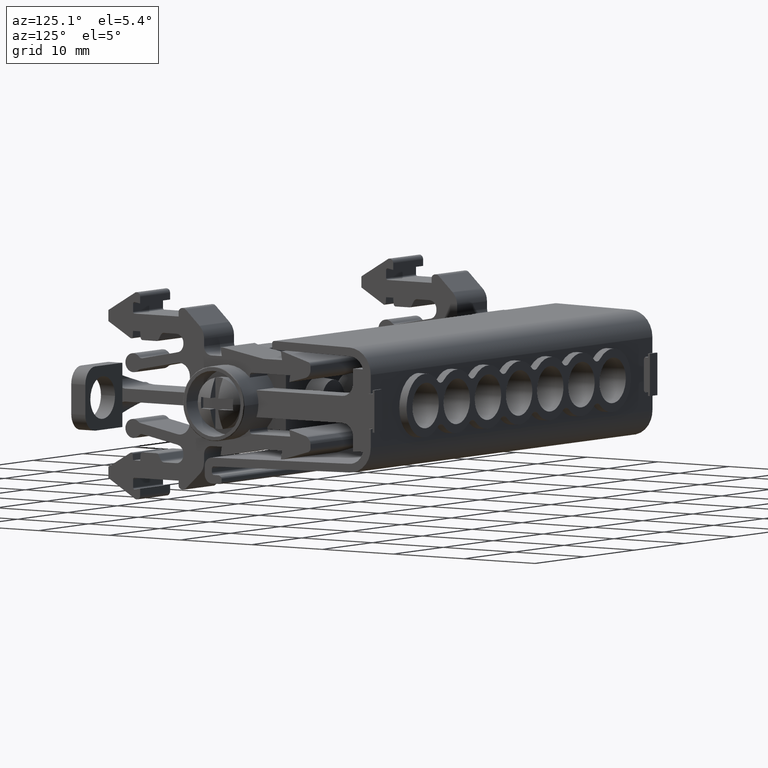
[diagram: clean part render]
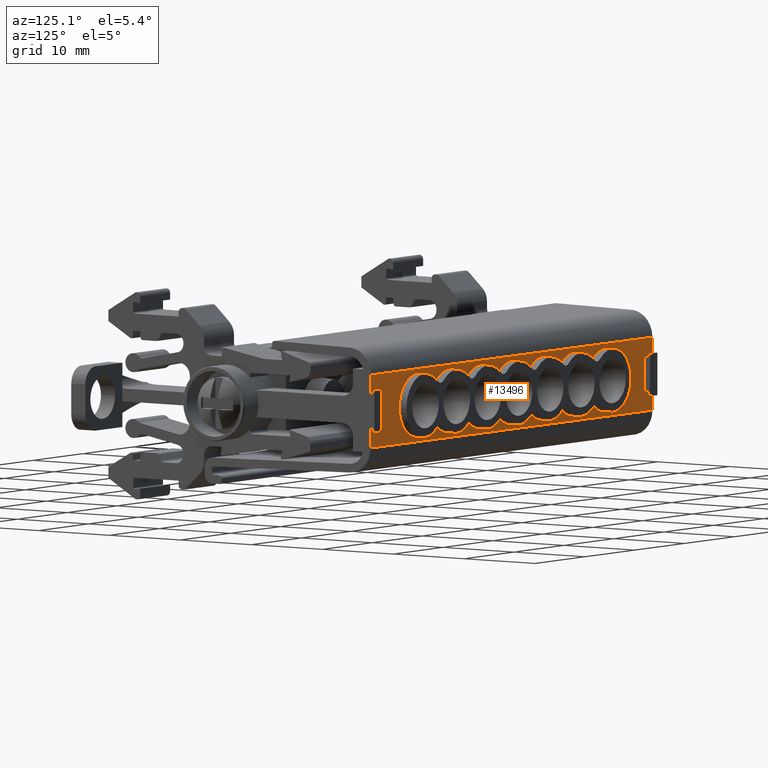
[diagram: same view with one face highlighted and labeled with its STEP entity id]
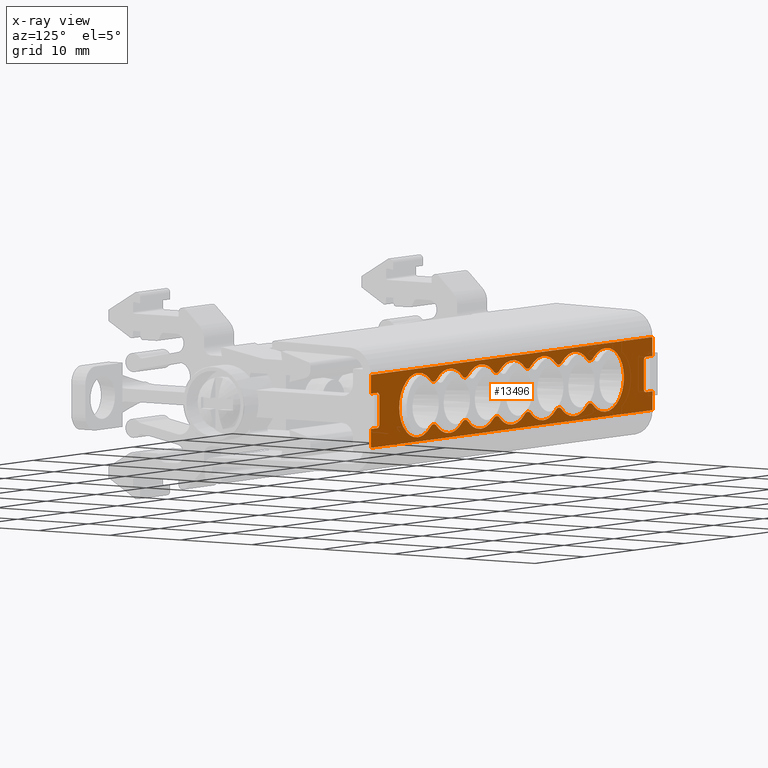
[diagram: x-ray of the same camera — body ghosted, the highlighted face saturated]
A machine part, auxiliary view. The second image highlights one B-rep face of the part: STEP entity #13496.
The next image is the same camera in x-ray: the body ghosted, the highlighted face saturated — about 0% of this face is hidden behind the body in this view.
In plain terms, the highlighted planar face has unit normal (-0, 1, -0).
Its self-contained STEP definition (entity closure, byte-faithful):
#1569 = LINE ( 'NONE', #1597, #11119 ) ;
#1597 = CARTESIAN_POINT ( 'NONE',  ( -28.99539649368647800, -21.96895092788991400, 98.03248297438037200 ) ) ;
#1601 = DIRECTION ( 'NONE',  ( 1.000000000000000000, 9.972015653221630100E-017, 2.855643684013666000E-015 ) ) ;
#1902 = CARTESIAN_POINT ( 'NONE',  ( -36.68723188216868900, -21.96895092789010600, 92.28351050668507600 ) ) ;
#1904 = CARTESIAN_POINT ( 'NONE',  ( -36.20596372886684800, -21.96895092788709300, 92.28316874538721500 ) ) ;
#1907 = CARTESIAN_POINT ( 'NONE',  ( -38.43592168719885600, -21.96895092789011600, 92.98691536486283800 ) ) ;
#1924 = CARTESIAN_POINT ( 'NONE',  ( -38.78294365350387800, -21.96895092788786000, 93.31931739004994600 ) ) ;
#1925 = CARTESIAN_POINT ( 'NONE',  ( -35.96901426681663600, -21.96895092789009100, 92.28326530496805400 ) ) ;
#1926 = CARTESIAN_POINT ( 'NONE',  ( -35.22382446254163600, -21.96895092789008800, 92.41120576774294200 ) ) ;
#1929 = CARTESIAN_POINT ( 'NONE',  ( -37.15013260331014800, -21.96895092789010200, 92.37312351021864700 ) ) ;
#1930 = CARTESIAN_POINT ( 'NONE',  ( -35.02854438118559700, -21.96895092789008100, 92.47306698405884600 ) ) ;
#1941 = CARTESIAN_POINT ( 'NONE',  ( -38.03919918127233000, -21.96895092789011300, 92.73089200175500900 ) ) ;
#1942 = CARTESIAN_POINT ( 'NONE',  ( -36.20596372886684800, -21.96895092788709300, 92.28316874538721500 ) ) ;
#1946 = CARTESIAN_POINT ( 'NONE',  ( -35.61994648584043700, -21.96895092789009100, 92.31599567050271600 ) ) ;
#1952 = CARTESIAN_POINT ( 'NONE',  ( -32.78875658624080800, -21.96895092788997400, 97.49422491693418600 ) ) ;
#1953 = CARTESIAN_POINT ( 'NONE',  ( -32.73106478384948300, -21.96895092788997400, 97.34832364827698800 ) ) ;
#1954 = CARTESIAN_POINT ( 'NONE',  ( -33.48180708749184500, -21.96895092789004900, 93.46412395752054200 ) ) ;
#1955 = CARTESIAN_POINT ( 'NONE',  ( -32.82927011953661600, -21.96895092789002700, 94.43326592322580400 ) ) ;
#1956 = CARTESIAN_POINT ( 'NONE',  ( -32.75391129876558700, -21.96895092789002000, 94.60841975643091900 ) ) ;
#1957 = CARTESIAN_POINT ( 'NONE',  ( -34.27208107117984800, -21.96895092788995300, 99.19264649673432600 ) ) ;
#1958 = CARTESIAN_POINT ( 'NONE',  ( -34.71769885837148500, -21.96895092788996700, 99.42135676997094200 ) ) ;
#1959 = CARTESIAN_POINT ( 'NONE',  ( -34.77559220762627500, -21.96895092788996000, 99.44599945851899700 ) ) ;
#1960 = CARTESIAN_POINT ( 'NONE',  ( -33.22827581262513500, -21.96895092788996400, 98.25925162025610900 ) ) ;
#1961 = CARTESIAN_POINT ( 'NONE',  ( -32.72114660176578100, -21.96895092788998100, 97.32231615926001200 ) ) ;
#1964 = CARTESIAN_POINT ( 'NONE',  ( -34.60444612871857800, -21.96895092789007700, 92.64245114282958600 ) ) ;
#1965 = CARTESIAN_POINT ( 'NONE',  ( -34.86429850672789900, -21.96895092789007700, 92.53289395192970800 ) ) ;
#1967 = CARTESIAN_POINT ( 'NONE',  ( -35.73021590691286800, -21.96895092788996400, 99.73094468270886600 ) ) ;
#1968 = CARTESIAN_POINT ( 'NONE',  ( -32.92523298649914000, -21.96895092789003100, 94.23603275525057700 ) ) ;
#1969 = CARTESIAN_POINT ( 'NONE',  ( -32.79126536791436300, -21.96895092789002700, 94.51952805292390300 ) ) ;
#1970 = CARTESIAN_POINT ( 'NONE',  ( -33.23613623269128700, -21.96895092789003800, 93.75858492176225000 ) ) ;
#1971 = CARTESIAN_POINT ( 'NONE',  ( -32.60911565187816300, -21.96895092788998100, 96.98813776348488600 ) ) ;
#1972 = CARTESIAN_POINT ( 'NONE',  ( -34.80661152811041600, -21.96895092788996700, 99.45871915536402200 ) ) ;
#1973 = CARTESIAN_POINT ( 'NONE',  ( -35.27329396610385000, -21.96895092788996700, 99.64371762961923200 ) ) ;
#1975 = CARTESIAN_POINT ( 'NONE',  ( -33.95337053510006300, -21.96895092789006300, 93.03010498047281400 ) ) ;
#1976 = CARTESIAN_POINT ( 'NONE',  ( -32.56877174552803900, -21.96895092789000600, 95.07545816633742700 ) ) ;
#1977 = CARTESIAN_POINT ( 'NONE',  ( -32.76662268713543800, -21.96895092789002000, 94.57742139030862900 ) ) ;
#1978 = CARTESIAN_POINT ( 'NONE',  ( -33.01796285585750500, -21.96895092788997100, 97.93726092249980300 ) ) ;
#1979 = CARTESIAN_POINT ( 'NONE',  ( -33.35331816985768000, -21.96895092789004900, 93.60650191988948200 ) ) ;
#1980 = CARTESIAN_POINT ( 'NONE',  ( -34.27536123287198700, -21.96895092789006300, 92.81979202369984700 ) ) ;
#1981 = CARTESIAN_POINT ( 'NONE',  ( -34.71839723988060200, -21.96895092789008100, 92.59058575314078600 ) ) ;
#1982 = CARTESIAN_POINT ( 'NONE',  ( -32.48123731958379100, -21.96895092788999200, 96.24310508524328600 ) ) ;
#1983 = CARTESIAN_POINT ( 'NONE',  ( -33.80467275204688300, -21.96895092788996400, 98.85930398551623500 ) ) ;
#1984 = CARTESIAN_POINT ( 'NONE',  ( -33.95675575391922500, -21.96895092788996700, 98.97648592268092200 ) ) ;
#1985 = CARTESIAN_POINT ( 'NONE',  ( -34.43420353201231900, -21.96895092788996700, 99.28738913261062700 ) ) ;
#1986 = CARTESIAN_POINT ( 'NONE',  ( -32.67108559653600300, -21.96895092788997800, 97.18369281539942500 ) ) ;
#1988 = CARTESIAN_POINT ( 'NONE',  ( -33.01997563791380900, -21.96895092789004200, 94.07391027067795600 ) ) ;
#1989 = CARTESIAN_POINT ( 'NONE',  ( -32.84062197640169200, -21.96895092788997100, 97.60817602882011100 ) ) ;
#1990 = CARTESIAN_POINT ( 'NONE',  ( -45.11294358007614800, -21.96895092788789600, 93.32028155312703200 ) ) ;
#1991 = CARTESIAN_POINT ( 'NONE',  ( -33.12304413295962700, -21.96895092789004200, 93.91641079713795600 ) ) ;
#1992 = CARTESIAN_POINT ( 'NONE',  ( -34.06030109727919400, -21.96895092788997400, 99.05209455179675600 ) ) ;
#1993 = CARTESIAN_POINT ( 'NONE',  ( -36.20482925865478300, -21.96895092788697600, 99.73128257782327900 ) ) ;
#1994 = CARTESIAN_POINT ( 'NONE',  ( -33.66229478967721200, -21.96895092788997100, 98.73081506787880800 ) ) ;
#1995 = CARTESIAN_POINT ( 'NONE',  ( -33.75386089671712900, -21.96895092789005900, 93.19230808545455600 ) ) ;
#1996 = CARTESIAN_POINT ( 'NONE',  ( -32.70071301668243500, -21.96895092788998500, 97.26694156308605000 ) ) ;
#1997 = CARTESIAN_POINT ( 'NONE',  ( -32.48154409345551800, -21.96895092788999900, 95.53376510901351500 ) ) ;
#1998 = CARTESIAN_POINT ( 'NONE',  ( -33.16052760357318600, -21.96895092789004500, 93.86213026512281500 ) ) ;
#1999 = CARTESIAN_POINT ( 'NONE',  ( -32.51381857196422200, -21.96895092788998100, 96.59179576373927000 ) ) ;
#2000 = CARTESIAN_POINT ( 'NONE',  ( -44.76592161373469700, -21.96895092789018400, 92.98787952790698300 ) ) ;
#2002 = CARTESIAN_POINT ( 'NONE',  ( -44.36919910789275400, -21.96895092789018400, 92.73185616483320400 ) ) ;
#2003 = CARTESIAN_POINT ( 'NONE',  ( -34.89018422343096400, -21.96895092789008100, 92.52302392073279700 ) ) ;
#2004 = CARTESIAN_POINT ( 'NONE',  ( -34.63143671383586800, -21.96895092788996400, 99.38335200863720300 ) ) ;
#2005 = CARTESIAN_POINT ( 'NONE',  ( -34.38208371102621200, -21.96895092789007000, 92.75760581964696900 ) ) ;
#2006 = CARTESIAN_POINT ( 'NONE',  ( -32.95577665321914700, -21.96895092788996700, 97.83053844651237800 ) ) ;
#2007 = CARTESIAN_POINT ( 'NONE',  ( -34.11458164512015400, -21.96895092788996400, 99.08957803276543100 ) ) ;
#2008 = CARTESIAN_POINT ( 'NONE',  ( -34.94544883138156200, -21.96895092789008100, 92.50263382698617000 ) ) ;
#2009 = CARTESIAN_POINT ( 'NONE',  ( -33.39047891760817800, -21.96895092788996000, 98.45876125864032200 ) ) ;
#2010 = CARTESIAN_POINT ( 'NONE',  ( -43.48013252983242400, -21.96895092789017000, 92.37408767329661400 ) ) ;
#2022 = CARTESIAN_POINT ( 'NONE',  ( -43.01723180869103700, -21.96895092789018000, 92.28447466976312800 ) ) ;
#2026 = CARTESIAN_POINT ( 'NONE',  ( -42.53596365543842200, -21.96895092788712100, 92.28413290846316400 ) ) ;
#2061 = CARTESIAN_POINT ( 'NONE',  ( -48.86596358200946400, -21.96895092788715000, 92.28509707154221100 ) ) ;
#2076 = CARTESIAN_POINT ( 'NONE',  ( -51.41037774500510000, -21.96895092788793800, 93.29039141623847800 ) ) ;
#2095 = CARTESIAN_POINT ( 'NONE',  ( -51.06503748764434600, -21.96895092789025500, 92.96748731165264700 ) ) ;
#2097 = CARTESIAN_POINT ( 'NONE',  ( -50.67222169778389700, -21.96895092789024800, 92.71898354356723400 ) ) ;
#2098 = CARTESIAN_POINT ( 'NONE',  ( -49.79543682457710200, -21.96895092789024100, 92.37227842485545200 ) ) ;
#2101 = CARTESIAN_POINT ( 'NONE',  ( -49.33948159818677900, -21.96895092789024400, 92.28543378729919800 ) ) ;
#2222 = CARTESIAN_POINT ( 'NONE',  ( -81.60965045690171800, -21.96895092789055300, 94.09872687568136500 ) ) ;
#2225 = CARTESIAN_POINT ( 'NONE',  ( -81.54226556508872600, -21.96895092789056400, 94.30759203125558100 ) ) ;
#2226 = CARTESIAN_POINT ( 'NONE',  ( -81.55269900045242100, -21.96895092789057100, 94.22099615414104800 ) ) ;
#2227 = CARTESIAN_POINT ( 'NONE',  ( -69.73223297022977400, -21.96895092789045000, 92.95731687207646100 ) ) ;
#2244 = CARTESIAN_POINT ( 'NONE',  ( -81.55824621404268300, -21.96895092789057500, 94.20192693621669400 ) ) ;
#2247 = CARTESIAN_POINT ( 'NONE',  ( -81.54263690409214900, -21.96895092789057100, 94.28441455751776300 ) ) ;
#2248 = CARTESIAN_POINT ( 'NONE',  ( -70.16572452517927200, -21.96895093875464500, 93.32931938157830100 ) ) ;
#2249 = CARTESIAN_POINT ( 'NONE',  ( -69.99921217699909400, -21.96895092789046100, 93.16995303394111300 ) ) ;
#2254 = CARTESIAN_POINT ( 'NONE',  ( -69.21231163619873400, -21.96895092789045400, 92.66609450350553300 ) ) ;
#2258 = CARTESIAN_POINT ( 'NONE',  ( -68.57156150770914800, -21.96895092789045400, 92.39292261284026600 ) ) ;
#2261 = CARTESIAN_POINT ( 'NONE',  ( -69.39063853060763200, -21.96895092789045700, 92.75546472972517600 ) ) ;
#2264 = CARTESIAN_POINT ( 'NONE',  ( -81.70635678621916000, -21.96895092789056700, 94.00367930550189000 ) ) ;
#2267 = CARTESIAN_POINT ( 'NONE',  ( -69.08188755761708000, -21.96895092789046100, 92.60693599344996600 ) ) ;
#2268 = CARTESIAN_POINT ( 'NONE',  ( -68.09370523189767300, -21.96895092789045000, 92.29701709828822200 ) ) ;
#2270 = CARTESIAN_POINT ( 'NONE',  ( -81.58471110502230800, -21.96895092789057100, 94.13640783708766000 ) ) ;
#2271 = CARTESIAN_POINT ( 'NONE',  ( -81.54479785896552400, -21.96895092789056400, 94.26245988734727600 ) ) ;
#2273 = CARTESIAN_POINT ( 'NONE',  ( -81.88231738030182800, -21.96894727513040400, 93.96743676883687600 ) ) ;
#2274 = CARTESIAN_POINT ( 'NONE',  ( -69.05755267441310300, -21.96895092789045400, 92.59639727149098600 ) ) ;
#2277 = CARTESIAN_POINT ( 'NONE',  ( -81.78805028189223900, -21.96895092789056700, 93.96895366834807800 ) ) ;
#2278 = CARTESIAN_POINT ( 'NONE',  ( -69.13427232260968900, -21.96895092789045400, 92.63026923047345900 ) ) ;
#2279 = CARTESIAN_POINT ( 'NONE',  ( -67.59539613029532700, -21.96895094091573200, 92.29671312445673000 ) ) ;
#2285 = CARTESIAN_POINT ( 'NONE',  ( -73.84511010597471200, -21.96895092789039000, 99.70197765951977000 ) ) ;
#2286 = CARTESIAN_POINT ( 'NONE',  ( -57.67047571093681300, -21.96895092782166300, 93.30083128215024100 ) ) ;
#2299 = CARTESIAN_POINT ( 'NONE',  ( -57.32459779740253900, -21.96895092789032600, 92.97500368908875100 ) ) ;
#2300 = CARTESIAN_POINT ( 'NONE',  ( -56.93056425556252300, -21.96895092789032600, 92.72418701666266800 ) ) ;
#2301 = CARTESIAN_POINT ( 'NONE',  ( -56.04997607992660100, -21.96895092789030800, 92.37408240829520900 ) ) ;
#2304 = CARTESIAN_POINT ( 'NONE',  ( -74.07973683407674100, -21.96895092789039700, 99.70188065940894300 ) ) ;
#2310 = CARTESIAN_POINT ( 'NONE',  ( -55.59178124264641200, -21.96895092789031900, 92.28638718018420700 ) ) ;
#2318 = CARTESIAN_POINT ( 'NONE',  ( -55.11568565590441400, -21.96895092772801300, 92.28604902167543900 ) ) ;
#2321 = CARTESIAN_POINT ( 'NONE',  ( -74.42542006166225100, -21.96895092789039300, 99.66945723252784700 ) ) ;
#2323 = CARTESIAN_POINT ( 'NONE',  ( -74.81775502814947700, -21.96895092789040000, 99.57514350740079600 ) ) ;
#2328 = CARTESIAN_POINT ( 'NONE',  ( -75.01118197830251700, -21.96895092789040000, 99.51386504639582100 ) ) ;
#2333 = CARTESIAN_POINT ( 'NONE',  ( -76.86161516229269400, -21.96895092789045400, 98.13787419207039900 ) ) ;
#2334 = CARTESIAN_POINT ( 'NONE',  ( -77.26440770865653500, -21.96895092789046400, 97.39860353993825000 ) ) ;
#2335 = CARTESIAN_POINT ( 'NONE',  ( -76.07288382348242800, -21.96895092789052100, 93.07163806327315600 ) ) ;
#2336 = CARTESIAN_POINT ( 'NONE',  ( -76.36457334958464600, -21.96895092789052500, 93.31499670756349500 ) ) ;
#2337 = CARTESIAN_POINT ( 'NONE',  ( -77.53451675182797900, -21.96895092789049300, 95.77930185464680300 ) ) ;
#2338 = CARTESIAN_POINT ( 'NONE',  ( -75.59992989707522800, -21.96895092789052800, 92.76365987715260500 ) ) ;
#2339 = CARTESIAN_POINT ( 'NONE',  ( -76.63382401989444800, -21.96895092789052100, 93.58448452690625200 ) ) ;
#2340 = CARTESIAN_POINT ( 'NONE',  ( -76.89874860848164000, -21.96895092789045000, 98.08410057181231400 ) ) ;
#2341 = CARTESIAN_POINT ( 'NONE',  ( -77.34645453465672900, -21.96895092789050700, 94.84756299812828200 ) ) ;
#2342 = CARTESIAN_POINT ( 'NONE',  ( -75.40455107385378100, -21.96895092789051800, 92.66859918420621500 ) ) ;
#2344 = CARTESIAN_POINT ( 'NONE',  ( -77.25181509647859500, -21.96895092789046800, 97.42931209924927300 ) ) ;
#2345 = CARTESIAN_POINT ( 'NONE',  ( -77.31710567770383600, -21.96895092789050700, 94.76509654975096500 ) ) ;
#2346 = CARTESIAN_POINT ( 'NONE',  ( -77.29686420810962500, -21.96895092789050700, 94.71024226549114600 ) ) ;
#2347 = CARTESIAN_POINT ( 'NONE',  ( -77.44780402989265200, -21.96895092789047900, 96.93596646802193100 ) ) ;
#2348 = CARTESIAN_POINT ( 'NONE',  ( -77.22989162017978500, -21.96895092789049600, 94.53995296364695400 ) ) ;
#2349 = CARTESIAN_POINT ( 'NONE',  ( -75.26174931888491000, -21.96895092789053500, 92.60653982294621800 ) ) ;
#2350 = CARTESIAN_POINT ( 'NONE',  ( -77.06444369315940400, -21.96895092789051100, 94.20680506878187500 ) ) ;
#2351 = CARTESIAN_POINT ( 'NONE',  ( -76.27387038268767600, -21.96895092789044000, 98.80138681528826800 ) ) ;
#2352 = CARTESIAN_POINT ( 'NONE',  ( -75.97031139673588000, -21.96895092789052500, 92.99673974733173100 ) ) ;
#2353 = CARTESIAN_POINT ( 'NONE',  ( -77.28703883380127600, -21.96895092789050700, 94.68447801311216900 ) ) ;
#2354 = CARTESIAN_POINT ( 'NONE',  ( -77.53421100173660800, -21.96895092789048600, 96.48195854281831900 ) ) ;
#2355 = CARTESIAN_POINT ( 'NONE',  ( -76.67063663315505600, -21.96895092789043600, 98.39109970809137500 ) ) ;
#2356 = CARTESIAN_POINT ( 'NONE',  ( -73.84567718639867500, -21.96895092789002400, 92.32394004668260800 ) ) ;
#2358 = CARTESIAN_POINT ( 'NONE',  ( -75.43127953857661800, -21.96895092789041100, 99.34607772319942900 ) ) ;
#2359 = CARTESIAN_POINT ( 'NONE',  ( -77.00283835152502800, -21.96895092789051800, 94.10107994312586800 ) ) ;
#2360 = CARTESIAN_POINT ( 'NONE',  ( -77.40784176881112400, -21.96895092789051400, 95.04127986492282800 ) ) ;
#2361 = CARTESIAN_POINT ( 'NONE',  ( -75.65154983863999400, -21.96895092789042200, 99.23200648994200900 ) ) ;
#2364 = CARTESIAN_POINT ( 'NONE',  ( -75.76052473653967900, -21.96895092789053200, 92.85750993071016500 ) ) ;
#2365 = CARTESIAN_POINT ( 'NONE',  ( -75.31840194450555300, -21.96895092789041500, 99.39745441648584300 ) ) ;
#2366 = CARTESIAN_POINT ( 'NONE',  ( -77.18975575287548500, -21.96895092789046800, 97.57211382724037200 ) ) ;
#2367 = CARTESIAN_POINT ( 'NONE',  ( -76.22353691277473300, -21.96895092789053200, 93.18771827647856300 ) ) ;
#2369 = CARTESIAN_POINT ( 'NONE',  ( -76.79451037086413100, -21.96895092789052100, 93.78212642283699600 ) ) ;
#2370 = CARTESIAN_POINT ( 'NONE',  ( -75.75727496646486300, -21.96895092789042200, 99.17040114689182000 ) ) ;
#2371 = CARTESIAN_POINT ( 'NONE',  ( -76.07622848682591200, -21.96895092789042200, 98.96207316618912800 ) ) ;
#2372 = CARTESIAN_POINT ( 'NONE',  ( -77.17851492641685200, -21.96895092789051400, 94.42707536884506700 ) ) ;
#2373 = CARTESIAN_POINT ( 'NONE',  ( -77.09469506908455100, -21.96895092789046100, 97.76749263647334900 ) ) ;
#2374 = CARTESIAN_POINT ( 'NONE',  ( -75.17387689686754000, -21.96895092789040800, 99.45460162891595200 ) ) ;
#2375 = CARTESIAN_POINT ( 'NONE',  ( -76.78671684635649800, -21.96895092789045000, 98.24044661880672900 ) ) ;
#2376 = CARTESIAN_POINT ( 'NONE',  ( -77.50224250884409100, -21.96895092789050000, 95.43389421416836200 ) ) ;
#2377 = CARTESIAN_POINT ( 'NONE',  ( -75.31909911164903800, -21.96895092789051800, 92.63095125213007500 ) ) ;
#2378 = CARTESIAN_POINT ( 'NONE',  ( -75.23101981489377000, -21.96895092789052100, 92.59393890604334800 ) ) ;
#2380 = CARTESIAN_POINT ( 'NONE',  ( -75.09349198556294900, -21.96895092789040800, 99.48457679201337100 ) ) ;
#2384 = CARTESIAN_POINT ( 'NONE',  ( -75.91653776047292000, -21.96895092789052500, 92.95960629067010900 ) ) ;
#2386 = CARTESIAN_POINT ( 'NONE',  ( -75.14823482216083100, -21.96895092789040800, 99.46437883202312900 ) ) ;
#2387 = CARTESIAN_POINT ( 'NONE',  ( -76.54335820206212300, -21.96895092789044300, 98.53213614491669100 ) ) ;
#2388 = CARTESIAN_POINT ( 'NONE',  ( -74.31602201015545000, -21.96895092789051400, 92.32427722205000000 ) ) ;
#2391 = CARTESIAN_POINT ( 'NONE',  ( -74.76873854774919400, -21.96895092789052100, 92.41068359837032600 ) ) ;
#2393 = CARTESIAN_POINT ( 'NONE',  ( -77.00084499983182700, -21.96895092789046400, 97.92808749991827700 ) ) ;
#2394 = CARTESIAN_POINT ( 'NONE',  ( -77.22740367514222700, -21.96895092789046800, 97.48666188002327700 ) ) ;
#3021 = CARTESIAN_POINT ( 'NONE',  ( -28.29172451947382400, -21.96895092788991400, 98.03248297438037200 ) ) ;
#3029 = CARTESIAN_POINT ( 'NONE',  ( -28.29172451947382800, -21.96895092788947700, 98.01146913648075600 ) ) ;
#3173 = CARTESIAN_POINT ( 'NONE',  ( -81.75911369695597800, -21.96894869112179500, 98.03833424044606200 ) ) ;
#3247 = CARTESIAN_POINT ( 'NONE',  ( -73.84511010597471200, -21.96895092789039000, 99.70197765951977000 ) ) ;
#3250 = CARTESIAN_POINT ( 'NONE',  ( -42.53596365543842200, -21.96895092788712100, 92.28413290846316400 ) ) ;
#3268 = CARTESIAN_POINT ( 'NONE',  ( -36.20596372886684800, -21.96895092788709300, 92.28316874538721500 ) ) ;
#3276 = CARTESIAN_POINT ( 'NONE',  ( -45.11294358007614800, -21.96895092788789600, 93.32028155312703200 ) ) ;
#3278 = CARTESIAN_POINT ( 'NONE',  ( -38.78294365350387800, -21.96895092788786000, 93.31931739004994600 ) ) ;
#3283 = CARTESIAN_POINT ( 'NONE',  ( -36.20482925865478300, -21.96895092788697600, 99.73128257782327900 ) ) ;
#3289 = CARTESIAN_POINT ( 'NONE',  ( -51.41037774500510000, -21.96895092788793800, 93.29039141623847800 ) ) ;
#3303 = CARTESIAN_POINT ( 'NONE',  ( -65.06504469112626100, -21.96895092788851400, 98.73243365049756900 ) ) ;
#3310 = CARTESIAN_POINT ( 'NONE',  ( -39.95784926058868100, -21.96895092788775400, 98.69609809623992200 ) ) ;
#3321 = CARTESIAN_POINT ( 'NONE',  ( -26.75395698715307100, -21.96895092788983200, 100.2328250727852700 ) ) ;
#3323 = CARTESIAN_POINT ( 'NONE',  ( -81.88169339187615500, -21.96895092789242200, 98.06092934273584700 ) ) ;
#3326 = CARTESIAN_POINT ( 'NONE',  ( -81.54174569714206200, -21.96895092789051400, 97.72067031410355800 ) ) ;
#3329 = CARTESIAN_POINT ( 'NONE',  ( -46.28784918716031200, -21.96895092788780700, 98.69706225931761900 ) ) ;
#3331 = CARTESIAN_POINT ( 'NONE',  ( -65.05574456030076600, -21.96895092788904700, 93.30026017727617200 ) ) ;
#3334 = CARTESIAN_POINT ( 'NONE',  ( -51.40954940244249400, -21.96895092788883700, 98.72869171814707600 ) ) ;
#3335 = CARTESIAN_POINT ( 'NONE',  ( -38.78212470866444100, -21.96895092788875200, 98.69591901405644300 ) ) ;
#3340 = CARTESIAN_POINT ( 'NONE',  ( -46.28866813199952900, -21.96895092788887300, 93.32046063530998500 ) ) ;
#3341 = CARTESIAN_POINT ( 'NONE',  ( -39.95866820542774200, -21.96895092788881200, 93.31949647223152100 ) ) ;
#3344 = CARTESIAN_POINT ( 'NONE',  ( -45.11212463523674600, -21.96895092788878000, 98.69688317713564600 ) ) ;
#3349 = CARTESIAN_POINT ( 'NONE',  ( -28.46992664892265900, -21.96895092788997800, 94.29950824132710400 ) ) ;
#3351 = CARTESIAN_POINT ( 'NONE',  ( -26.75491258781781000, -21.96894686913386300, 93.95903994817517500 ) ) ;
#3355 = CARTESIAN_POINT ( 'NONE',  ( -83.25675975824650300, -21.96894757946611400, 98.06113860725733400 ) ) ;
#3360 = CARTESIAN_POINT ( 'NONE',  ( -83.25771545778722800, -21.96895092789093300, 91.78670433755148400 ) ) ;
#3365 = CARTESIAN_POINT ( 'NONE',  ( -58.82041480379837100, -21.96895092788787800, 98.72982051481204700 ) ) ;
#3366 = CARTESIAN_POINT ( 'NONE',  ( -26.75524478110173400, -21.96895092788992400, 91.77809808215130300 ) ) ;
#4175 = CARTESIAN_POINT ( 'NONE',  ( -158.2577145877762100, -21.96895092789144900, 91.79812807070480600 ) ) ;
#4203 = PLANE ( 'NONE',  #9448 ) ;
#4206 = FACE_OUTER_BOUND ( 'NONE', #18891, .T. ) ;
#4209 = FACE_BOUND ( 'NONE', #18921, .T. ) ;
#4214 = DIRECTION ( 'NONE',  ( -1.100262574215317600E-014, 1.000000000000000000, -1.654659291213067100E-014 ) ) ;
#4215 = DIRECTION ( 'NONE',  ( 0.0000000000000000000, 1.654659291213067100E-014, 1.000000000000000000 ) ) ;
#4537 = CARTESIAN_POINT ( 'NONE',  ( -67.59539613029532700, -21.96895094091573200, 92.29671312445673000 ) ) ;
#4540 = CARTESIAN_POINT ( 'NONE',  ( -63.89516423834103200, -21.96895092782171200, 93.30131922240748600 ) ) ;
#4547 = CARTESIAN_POINT ( 'NONE',  ( -61.36567871112386300, -21.96895092772804100, 92.30398225726402500 ) ) ;
#4556 = CARTESIAN_POINT ( 'NONE',  ( -57.67047571093681300, -21.96895092782166300, 93.30083128215024100 ) ) ;
#4568 = CARTESIAN_POINT ( 'NONE',  ( -55.11568565590441400, -21.96895092772801300, 92.28604902167543900 ) ) ;
#4573 = CARTESIAN_POINT ( 'NONE',  ( -48.86596358200946400, -21.96895092788715000, 92.28509707154221100 ) ) ;
#4579 = CARTESIAN_POINT ( 'NONE',  ( -73.84567718639867500, -21.96895092789002400, 92.32394004668260800 ) ) ;
#4580 = CARTESIAN_POINT ( 'NONE',  ( -71.31048934842306200, -21.96895092788641100, 93.33282679635156900 ) ) ;
#4581 = CARTESIAN_POINT ( 'NONE',  ( -81.88231738030182800, -21.96894727513040400, 93.96743676883687600 ) ) ;
#4597 = CARTESIAN_POINT ( 'NONE',  ( -70.16572452517927200, -21.96895093875464500, 93.32931938157830100 ) ) ;
#4626 = CARTESIAN_POINT ( 'NONE',  ( -28.12935496576326600, -21.96894773152712000, 98.05274180231620600 ) ) ;
#4653 = CARTESIAN_POINT ( 'NONE',  ( -81.54226556508872600, -21.96895092789056400, 94.30759203125558100 ) ) ;
#6446 = EDGE_CURVE ( 'NONE', #24487, #18225, #1569, .T. ) ;
#6479 = CARTESIAN_POINT ( 'NONE',  ( -81.54226556508872600, -21.96895092789056400, 94.30759203125558100 ) ) ;
#6506 = CARTESIAN_POINT ( 'NONE',  ( -83.25738389827125700, -21.96895092789389600, 93.96764602297261600 ) ) ;
#6507 = DIRECTION ( 'NONE',  ( 0.0001523164420943271500, 1.626424769284808600E-014, 0.9999999883998506000 ) ) ;
#6513 = LINE ( 'NONE', #6479, #9869 ) ;
#6517 = CARTESIAN_POINT ( 'NONE',  ( -82.79902830777936600, -21.96895092789058500, 93.96757625039563800 ) ) ;
#6520 = CARTESIAN_POINT ( 'NONE',  ( -82.34067284404059700, -21.96895092789057800, 93.96750647783791500 ) ) ;
#6522 = CARTESIAN_POINT ( 'NONE',  ( -81.88231738030182800, -21.96894727513040400, 93.96743676883687600 ) ) ;
#6529 = CARTESIAN_POINT ( 'NONE',  ( -28.45273069281529700, -21.96895092788991700, 97.83483819644659700 ) ) ;
#6530 = CARTESIAN_POINT ( 'NONE',  ( -28.34655799973961600, -21.96895092788991700, 97.98082644838700600 ) ) ;
#6542 = CARTESIAN_POINT ( 'NONE',  ( -28.39050147361093600, -21.96895092788991700, 97.93808499050133800 ) ) ;
#6545 = CARTESIAN_POINT ( 'NONE',  ( -42.53596365543842200, -21.96895092788712100, 92.28413290846316400 ) ) ;
#6546 = CARTESIAN_POINT ( 'NONE',  ( -39.95866820542774200, -21.96895092788881200, 93.31949647223152100 ) ) ;
#6553 = CARTESIAN_POINT ( 'NONE',  ( -40.30631980213883000, -21.96895092789013400, 92.98669394901205000 ) ) ;
#6555 = CARTESIAN_POINT ( 'NONE',  ( -28.29172451947382800, -21.96895092788947700, 98.01146913648075600 ) ) ;
#6563 = CARTESIAN_POINT ( 'NONE',  ( -42.05542717046665800, -21.96895092789016600, 92.28432805947501500 ) ) ;
#6576 = CARTESIAN_POINT ( 'NONE',  ( -41.59186903175164200, -21.96895092789015900, 92.37405297881599600 ) ) ;
#6579 = CARTESIAN_POINT ( 'NONE',  ( -40.70249028674557200, -21.96895092789014100, 92.73104474568468400 ) ) ;
#6580 = CARTESIAN_POINT ( 'NONE',  ( -28.12935496576326600, -21.96894773152712000, 98.05274180231620600 ) ) ;
#6581 = CARTESIAN_POINT ( 'NONE',  ( -28.16902978277932600, -21.96895092788991000, 98.05245974657873400 ) ) ;
#6582 = CARTESIAN_POINT ( 'NONE',  ( -28.20757236020006800, -21.96895092788991400, 98.04570678798859300 ) ) ;
#6583 = CARTESIAN_POINT ( 'NONE',  ( -28.24498269802550600, -21.96895092788991400, 98.03248297438038600 ) ) ;
#6584 = LINE ( 'NONE', #6592, #9871 ) ;
#6587 = CARTESIAN_POINT ( 'NONE',  ( -57.97768673361786500, -21.96895092789023700, 98.54009536455649300 ) ) ;
#6588 = CARTESIAN_POINT ( 'NONE',  ( -58.13249270998427000, -21.96895092789023000, 98.50549481033141300 ) ) ;
#6590 = CARTESIAN_POINT ( 'NONE',  ( -46.28866813199952900, -21.96895092788887300, 93.32046063530998500 ) ) ;
#6591 = CARTESIAN_POINT ( 'NONE',  ( -46.20915792701570300, -21.96895092789019800, 93.39628782492064800 ) ) ;
#6592 = CARTESIAN_POINT ( 'NONE',  ( -83.25642766383872100, -21.96895092789048600, 100.2414313281852700 ) ) ;
#6593 = CARTESIAN_POINT ( 'NONE',  ( -27.21264307962733000, -21.96895092788990000, 98.05260230488949000 ) ) ;
#6595 = CARTESIAN_POINT ( 'NONE',  ( -57.65954932994172600, -21.96895092788889100, 98.72964369590997100 ) ) ;
#6604 = CARTESIAN_POINT ( 'NONE',  ( -57.73867215682565800, -21.96895092789023000, 98.65598598752268300 ) ) ;
#6605 = CARTESIAN_POINT ( 'NONE',  ( -57.82844938086124400, -21.96895092789022300, 98.59925195489420000 ) ) ;
#6606 = DIRECTION ( 'NONE',  ( 0.9999999883998506000, 1.099121843271707400E-014, -0.0001523164420439818500 ) ) ;
#6610 = CARTESIAN_POINT ( 'NONE',  ( -26.75428616405953600, -21.96895092790014600, 98.05253253211090200 ) ) ;
#6612 = CARTESIAN_POINT ( 'NONE',  ( -27.67099902269530200, -21.96895092788990700, 98.05267207752015700 ) ) ;
#6614 = CARTESIAN_POINT ( 'NONE',  ( -28.12935496576326600, -21.96894773152712000, 98.05274180231620600 ) ) ;
#6617 = CARTESIAN_POINT ( 'NONE',  ( -28.46940678097633900, -21.96895092788992400, 97.71258652417533600 ) ) ;
#6620 = CARTESIAN_POINT ( 'NONE',  ( -28.46866092540303900, -21.96895092788992100, 97.77687984001372000 ) ) ;
#6629 = CARTESIAN_POINT ( 'NONE',  ( -58.02854624259202900, -21.96895092789023400, 98.52528770833311000 ) ) ;
#6636 = CARTESIAN_POINT ( 'NONE',  ( -45.11294358007614800, -21.96895092788789600, 93.32028155312703200 ) ) ;
#6638 = CARTESIAN_POINT ( 'NONE',  ( -45.19247337444472400, -21.96895092789018400, 93.39616291670324700 ) ) ;
#6641 = CARTESIAN_POINT ( 'NONE',  ( -60.87367666993542800, -21.96895092789024800, 99.73464496791311300 ) ) ;
#6644 = CARTESIAN_POINT ( 'NONE',  ( -45.28319858703184100, -21.96895092789018400, 93.45446129620395900 ) ) ;
#6645 = CARTESIAN_POINT ( 'NONE',  ( -59.25209611754273500, -21.96895092789023700, 99.09226590489328100 ) ) ;
#6646 = CARTESIAN_POINT ( 'NONE',  ( -58.65141908107418800, -21.96895092789024400, 98.59946036551382100 ) ) ;
#6647 = CARTESIAN_POINT ( 'NONE',  ( -59.76722631999764000, -21.96895092789024400, 99.37565422354886400 ) ) ;
#6648 = CARTESIAN_POINT ( 'NONE',  ( -58.74120997695008100, -21.96895092789024800, 98.65605131968844400 ) ) ;
#6650 = CARTESIAN_POINT ( 'NONE',  ( -58.45066515126879400, -21.96895092789024100, 98.52063493906028700 ) ) ;
#6652 = CARTESIAN_POINT ( 'NONE',  ( -58.98651033814451200, -21.96895092789023700, 98.88513002934807600 ) ) ;
#6655 = CARTESIAN_POINT ( 'NONE',  ( -62.57793218621687700, -21.96895092789027600, 99.53322906131964500 ) ) ;
#6656 = CARTESIAN_POINT ( 'NONE',  ( -62.67796022847314700, -21.96895092789026500, 99.49639023343574700 ) ) ;
#6659 = CARTESIAN_POINT ( 'NONE',  ( -45.48703984864207000, -21.96895092789018000, 93.53589208705618300 ) ) ;
#6662 = CARTESIAN_POINT ( 'NONE',  ( -58.82041480379837100, -21.96895092788787800, 98.72982051481204700 ) ) ;
#6663 = CARTESIAN_POINT ( 'NONE',  ( -59.59072052979763600, -21.96895092789023400, 99.28872473290636000 ) ) ;
#6664 = CARTESIAN_POINT ( 'NONE',  ( -59.84441314095605000, -21.96895092789024100, 99.41048830738904500 ) ) ;
#6668 = CARTESIAN_POINT ( 'NONE',  ( -59.89621357321748700, -21.96895092789024400, 99.43317293836038600 ) ) ;
#6669 = CARTESIAN_POINT ( 'NONE',  ( -61.60739901716691900, -21.96895092789025500, 99.73534853857432800 ) ) ;
#6671 = CARTESIAN_POINT ( 'NONE',  ( -45.91555620654590100, -21.96895092789019100, 93.53106391970798900 ) ) ;
#6672 = CARTESIAN_POINT ( 'NONE',  ( -58.34570560258746500, -21.96895092789023700, 98.50029084709567000 ) ) ;
#6673 = CARTESIAN_POINT ( 'NONE',  ( -58.82041480379837100, -21.96895092788787800, 98.72982051481204700 ) ) ;
#6674 = CARTESIAN_POINT ( 'NONE',  ( -58.18681772601986800, -21.96895092789023700, 98.50050787744807200 ) ) ;
#6675 = CARTESIAN_POINT ( 'NONE',  ( -46.11847710116622800, -21.96895092789019100, 93.45474398953933800 ) ) ;
#6676 = CARTESIAN_POINT ( 'NONE',  ( -45.96715581360223300, -21.96895092789018400, 93.51578442076184700 ) ) ;
#6677 = CARTESIAN_POINT ( 'NONE',  ( -45.75481713112078800, -21.96895092789018400, 93.55663500646666400 ) ) ;
#6678 = CARTESIAN_POINT ( 'NONE',  ( -45.59349633748559000, -21.96895092789018700, 93.55686219285573200 ) ) ;
#6686 = CARTESIAN_POINT ( 'NONE',  ( -59.92025521447395400, -21.96895092789023000, 99.44341051261399400 ) ) ;
#6687 = CARTESIAN_POINT ( 'NONE',  ( -60.40088972793221700, -21.96895092789024400, 99.64128914130211000 ) ) ;
#6688 = CARTESIAN_POINT ( 'NONE',  ( -61.96766491191927200, -21.96895092789025500, 99.70076064443581700 ) ) ;
#6689 = CARTESIAN_POINT ( 'NONE',  ( -62.37643338445277400, -21.96895092789026900, 99.59926366220351200 ) ) ;
#6690 = CARTESIAN_POINT ( 'NONE',  ( -45.81003863669663200, -21.96895092789019400, 93.55148829467754000 ) ) ;
#6696 = CARTESIAN_POINT ( 'NONE',  ( -63.19711087020712600, -21.96895092789028300, 99.28520030318945500 ) ) ;
#6700 = CARTESIAN_POINT ( 'NONE',  ( -62.76439475544065500, -21.96895092789026900, 99.46237257738441400 ) ) ;
#6707 = CARTESIAN_POINT ( 'NONE',  ( -63.90662079811017500, -21.96895092788893700, 98.73333232120103300 ) ) ;
#6718 = CARTESIAN_POINT ( 'NONE',  ( -63.57348201458391700, -21.96895092789028700, 99.04397650339257100 ) ) ;
#6728 = CARTESIAN_POINT ( 'NONE',  ( -62.74911685159347000, -21.96895092789026500, 99.46852997622080700 ) ) ;
#6730 = CARTESIAN_POINT ( 'NONE',  ( -62.72067481259180300, -21.96895092789027300, 99.47978326560516400 ) ) ;
#6810 = CARTESIAN_POINT ( 'NONE',  ( -55.35959634845191600, -21.96895092789018700, 99.73426585665151800 ) ) ;
#6819 = CARTESIAN_POINT ( 'NONE',  ( -56.51727587931055300, -21.96895092789020500, 99.46025139522701900 ) ) ;
#6826 = CARTESIAN_POINT ( 'NONE',  ( -52.73662220697801200, -21.96895092789017700, 98.88428265196844800 ) ) ;
#6827 = CARTESIAN_POINT ( 'NONE',  ( -53.00239464202589800, -21.96895092789017300, 99.09153925911935800 ) ) ;
#6832 = CARTESIAN_POINT ( 'NONE',  ( -53.67105264938033600, -21.96895092789017300, 99.44279435482720000 ) ) ;
#6833 = CARTESIAN_POINT ( 'NONE',  ( -55.72011730716719300, -21.96895092789018700, 99.69943121749591300 ) ) ;
#6834 = CARTESIAN_POINT ( 'NONE',  ( -56.12912258355364500, -21.96895092789019800, 99.59755987749296900 ) ) ;
#6835 = CARTESIAN_POINT ( 'NONE',  ( -56.47353470195199800, -21.96895092789021200, 99.47771265574526500 ) ) ;
#6836 = CARTESIAN_POINT ( 'NONE',  ( -56.50198967647605000, -21.96895092789020500, 99.46642696357722000 ) ) ;
#6837 = CARTESIAN_POINT ( 'NONE',  ( -53.59515548852085900, -21.96895092789017300, 99.40986862147129000 ) ) ;
#6838 = CARTESIAN_POINT ( 'NONE',  ( -56.33072459455156900, -21.96895092789019800, 99.53131647557776800 ) ) ;
#6840 = CARTESIAN_POINT ( 'NONE',  ( -56.43080044325167700, -21.96895092789019800, 99.49436784164177500 ) ) ;
#6844 = CARTESIAN_POINT ( 'NONE',  ( -57.32652153884978900, -21.96895092789021900, 99.04085527378798300 ) ) ;
#6847 = CARTESIAN_POINT ( 'NONE',  ( -53.34127000122061400, -21.96895092789017700, 99.28807564497590500 ) ) ;
#6848 = CARTESIAN_POINT ( 'NONE',  ( -53.64699572058505300, -21.96895092789017300, 99.43255679693260200 ) ) ;
#6849 = CARTESIAN_POINT ( 'NONE',  ( -54.15211394443722500, -21.96895092789017700, 99.64071430318226400 ) ) ;
#6854 = CARTESIAN_POINT ( 'NONE',  ( -54.62529442098551200, -21.96895092789018000, 99.73395693192874500 ) ) ;
#6855 = CARTESIAN_POINT ( 'NONE',  ( -57.65954932994172600, -21.96895092788889100, 98.72964369590997100 ) ) ;
#6856 = CARTESIAN_POINT ( 'NONE',  ( -53.51790956039433700, -21.96895092789017300, 99.37502809061591300 ) ) ;
#6857 = CARTESIAN_POINT ( 'NONE',  ( -52.57041487630075900, -21.96895092788782800, 98.72886853704775900 ) ) ;
#6858 = CARTESIAN_POINT ( 'NONE',  ( -56.95013604689776800, -21.96895092789020200, 99.28259668150254000 ) ) ;
#6878 = DIRECTION ( 'NONE',  ( -0.0001523164420373389700, -0.0000000000000000000, -0.9999999883998506000 ) ) ;
#6909 = LINE ( 'NONE', #6912, #9876 ) ;
#6912 = CARTESIAN_POINT ( 'NONE',  ( -26.75555531157060700, -21.96894727535114100, 89.73937881456343700 ) ) ;
#6923 = LINE ( 'NONE', #6969, #9881 ) ;
#6924 = CARTESIAN_POINT ( 'NONE',  ( -28.12997981878400100, -21.96895092789535300, 93.95924921282674800 ) ) ;
#6927 = CARTESIAN_POINT ( 'NONE',  ( -27.67162373843926900, -21.96895092788997800, 93.95917944017503500 ) ) ;
#6953 = DIRECTION ( 'NONE',  ( 0.0001523164420513048500, -0.0000000000000000000, 0.9999999883998506000 ) ) ;
#6969 = CARTESIAN_POINT ( 'NONE',  ( -83.25802598825605100, -21.96895092789122800, 89.74798506996346200 ) ) ;
#6974 = CARTESIAN_POINT ( 'NONE',  ( -26.75491258781781000, -21.96894686913386300, 93.95903994817517500 ) ) ;
#6983 = CARTESIAN_POINT ( 'NONE',  ( -27.21326816312959500, -21.96895092788997100, 93.95910966760034500 ) ) ;
#7059 = LINE ( 'NONE', #7112, #9839 ) ;
#7112 = CARTESIAN_POINT ( 'NONE',  ( -26.75524478110163800, -21.96895092789000300, 91.77809808215138800 ) ) ;
#7116 = DIRECTION ( 'NONE',  ( -0.9999999883998506000, -1.099121843271709900E-014, 0.0001523164420457015000 ) ) ;
#7126 = CARTESIAN_POINT ( 'NONE',  ( -63.90662079811017500, -21.96895092788893700, 98.73333232120103300 ) ) ;
#7127 = CARTESIAN_POINT ( 'NONE',  ( -63.98560272645504900, -21.96895092789029700, 98.65996462994640100 ) ) ;
#7145 = CARTESIAN_POINT ( 'NONE',  ( -46.45340820903792400, -21.96895092789010200, 98.85565182470993800 ) ) ;
#7146 = CARTESIAN_POINT ( 'NONE',  ( -47.39080297086439200, -21.96895092789010900, 99.42885339884890100 ) ) ;
#7150 = CARTESIAN_POINT ( 'NONE',  ( -64.07519247696585300, -21.96895092789030100, 98.60343272478421300 ) ) ;
#7154 = CARTESIAN_POINT ( 'NONE',  ( -64.27474575542197500, -21.96895092789030800, 98.52969816706287500 ) ) ;
#7155 = CARTESIAN_POINT ( 'NONE',  ( -64.69580375492921600, -21.96895092789031200, 98.52470685189116800 ) ) ;
#7160 = CARTESIAN_POINT ( 'NONE',  ( -65.06504469112626100, -21.96895092788851400, 98.73243365049756900 ) ) ;
#7161 = CARTESIAN_POINT ( 'NONE',  ( -46.71873590979535600, -21.96895092789009900, 99.06746817213816300 ) ) ;
#7163 = CARTESIAN_POINT ( 'NONE',  ( -47.32548329069970100, -21.96895092789009500, 99.40013498310847200 ) ) ;
#7164 = CARTESIAN_POINT ( 'NONE',  ( -47.36462200764871300, -21.96895092789010900, 99.41744749505483000 ) ) ;
#7165 = CARTESIAN_POINT ( 'NONE',  ( -47.40289839485583900, -21.96895092789009900, 99.43404943450811100 ) ) ;
#7168 = CARTESIAN_POINT ( 'NONE',  ( -48.34854590956459200, -21.96895092789010600, 99.72995789275927300 ) ) ;
#7169 = CARTESIAN_POINT ( 'NONE',  ( -49.86600263756935200, -21.96895092789012700, 99.60036814941203400 ) ) ;
#7170 = CARTESIAN_POINT ( 'NONE',  ( -50.06955897236413500, -21.96895092789013400, 99.53422007996471200 ) ) ;
#7175 = CARTESIAN_POINT ( 'NONE',  ( -64.22402343778867400, -21.96895092789030500, 98.54446910536258000 ) ) ;
#7176 = CARTESIAN_POINT ( 'NONE',  ( -46.28784918716031200, -21.96895092788780700, 98.69706225931761900 ) ) ;
#7178 = CARTESIAN_POINT ( 'NONE',  ( -64.43259150306082000, -21.96895092789030800, 98.50491702297534900 ) ) ;
#7179 = CARTESIAN_POINT ( 'NONE',  ( -64.89611690852559900, -21.96895092789031200, 98.60289672176610100 ) ) ;
#7181 = CARTESIAN_POINT ( 'NONE',  ( -47.87210120911468200, -21.96895092789010600, 99.63225442653839500 ) ) ;
#7182 = CARTESIAN_POINT ( 'NONE',  ( -49.08932491740886000, -21.96895092789011300, 99.73473095703762700 ) ) ;
#7185 = CARTESIAN_POINT ( 'NONE',  ( -49.45311879452143700, -21.96895092789011600, 99.70149188221662900 ) ) ;
#7186 = CARTESIAN_POINT ( 'NONE',  ( -64.98581169499212300, -21.96895092789031200, 98.65910734298877600 ) ) ;
#7190 = CARTESIAN_POINT ( 'NONE',  ( -64.59107401628371300, -21.96895092789030800, 98.50456482729947500 ) ) ;
#7199 = CARTESIAN_POINT ( 'NONE',  ( -64.37841438540665700, -21.96895092789030100, 98.50992349347853900 ) ) ;
#7201 = CARTESIAN_POINT ( 'NONE',  ( -47.05801593790930300, -21.96895092789009500, 99.26896824298165700 ) ) ;
#7202 = CARTESIAN_POINT ( 'NONE',  ( -47.23508871294055900, -21.96895092789010200, 99.35831352811440800 ) ) ;
#7205 = CARTESIAN_POINT ( 'NONE',  ( -50.25796102900047700, -21.96895092789013000, 99.46307008399357100 ) ) ;
#7207 = CARTESIAN_POINT ( 'NONE',  ( -50.21377120266803500, -21.96895092789012300, 99.48056998268020800 ) ) ;
#7215 = CARTESIAN_POINT ( 'NONE',  ( -39.15703992206469800, -21.96895092789011300, 93.53492792397248900 ) ) ;
#7219 = CARTESIAN_POINT ( 'NONE',  ( -39.95866820542774200, -21.96895092788881200, 93.31949647223152100 ) ) ;
#7220 = CARTESIAN_POINT ( 'NONE',  ( -39.87915800044707000, -21.96895092789012000, 93.39532366184023700 ) ) ;
#7221 = CARTESIAN_POINT ( 'NONE',  ( -39.63715588703448100, -21.96895092789011600, 93.51482025768316900 ) ) ;
#7222 = CARTESIAN_POINT ( 'NONE',  ( -48.86596358200946400, -21.96895092788715000, 92.28509707154221100 ) ) ;
#7227 = CARTESIAN_POINT ( 'NONE',  ( -39.78847717458835100, -21.96895092789012300, 93.45377982646267900 ) ) ;
#7228 = CARTESIAN_POINT ( 'NONE',  ( -38.86247344787965100, -21.96895092789011300, 93.39519875363105000 ) ) ;
#7231 = CARTESIAN_POINT ( 'NONE',  ( -39.48003871013056500, -21.96895092789011300, 93.55052413159856400 ) ) ;
#7232 = CARTESIAN_POINT ( 'NONE',  ( -51.07402190677591800, -21.96895092789014800, 99.04224069550639300 ) ) ;
#7234 = CARTESIAN_POINT ( 'NONE',  ( -47.92186895832500000, -21.96895092789022600, 92.37501714189205900 ) ) ;
#7235 = CARTESIAN_POINT ( 'NONE',  ( -39.42481720454375000, -21.96895092789011300, 93.55567084338805700 ) ) ;
#7236 = CARTESIAN_POINT ( 'NONE',  ( -38.78294365350387800, -21.96895092788786000, 93.31931739004994600 ) ) ;
#7237 = CARTESIAN_POINT ( 'NONE',  ( -39.58555627997982600, -21.96895092789010900, 93.53009975662894200 ) ) ;
#7239 = CARTESIAN_POINT ( 'NONE',  ( -50.69456930018602500, -21.96895092789014500, 99.28523719228655900 ) ) ;
#7240 = CARTESIAN_POINT ( 'NONE',  ( -38.95319866046680300, -21.96895092789010900, 93.45349713313186200 ) ) ;
#7242 = CARTESIAN_POINT ( 'NONE',  ( -39.26349641092623700, -21.96895092789010900, 93.55589802977921500 ) ) ;
#7244 = CARTESIAN_POINT ( 'NONE',  ( -48.38542709703451500, -21.96895092789023000, 92.28529222255328100 ) ) ;
#7245 = CARTESIAN_POINT ( 'NONE',  ( -47.03249021331434700, -21.96895092789020500, 92.73200890876505300 ) ) ;
#7246 = CARTESIAN_POINT ( 'NONE',  ( -51.40954940244249400, -21.96895092788883700, 98.72869171814707600 ) ) ;
#7247 = CARTESIAN_POINT ( 'NONE',  ( -46.63631972870765500, -21.96895092789020200, 92.98765811209236200 ) ) ;
#7248 = CARTESIAN_POINT ( 'NONE',  ( -50.17061574307919600, -21.96895092789013000, 99.49724949447971800 ) ) ;
#7255 = CARTESIAN_POINT ( 'NONE',  ( -46.28866813199952900, -21.96895092788887300, 93.32046063530998500 ) ) ;
#7258 = CARTESIAN_POINT ( 'NONE',  ( -50.24250715683763200, -21.96895092789012700, 99.46926475811095300 ) ) ;
#7259 = CARTESIAN_POINT ( 'NONE',  ( -43.56611595947321500, -21.96895092789004900, 99.59095732075286400 ) ) ;
#7263 = CARTESIAN_POINT ( 'NONE',  ( -44.77793135486495400, -21.96895092789007400, 99.01681454266234500 ) ) ;
#7264 = CARTESIAN_POINT ( 'NONE',  ( -41.08190196539476300, -21.96895092789003500, 99.43691655869156400 ) ) ;
#7267 = CARTESIAN_POINT ( 'NONE',  ( -40.39203831968416100, -21.96895092789003800, 99.06905440926541900 ) ) ;
#7269 = CARTESIAN_POINT ( 'NONE',  ( -43.94466058177999200, -21.96895092789005600, 99.45533066091937300 ) ) ;
#7275 = CARTESIAN_POINT ( 'NONE',  ( -41.00384204826772800, -21.96895092789003500, 99.40295838830772400 ) ) ;
#7289 = CARTESIAN_POINT ( 'NONE',  ( -39.95784926058868100, -21.96895092788775400, 98.69609809623992200 ) ) ;
#7292 = CARTESIAN_POINT ( 'NONE',  ( -40.73411246306389400, -21.96895092789003500, 99.27143917949511800 ) ) ;
#7293 = CARTESIAN_POINT ( 'NONE',  ( -41.06972132764877200, -21.96895092789003500, 99.43172157867877600 ) ) ;
#7295 = CARTESIAN_POINT ( 'NONE',  ( -41.55575799707902700, -21.96895092789002700, 99.63560077156120100 ) ) ;
#7297 = CARTESIAN_POINT ( 'NONE',  ( -40.91267752199318900, -21.96895092789002700, 99.36104906811871700 ) ) ;
#7299 = CARTESIAN_POINT ( 'NONE',  ( -42.78392996091821500, -21.96895092789004500, 99.73235120172866200 ) ) ;
#7300 = CARTESIAN_POINT ( 'NONE',  ( -40.12464215303684500, -21.96895092789003100, 98.85587033252733100 ) ) ;
#7301 = CARTESIAN_POINT ( 'NONE',  ( -43.77082047574410200, -21.96895092789005600, 99.52244373749680100 ) ) ;
#7303 = CARTESIAN_POINT ( 'NONE',  ( -43.91578132842424500, -21.96895092789005900, 99.46700306804605400 ) ) ;
#7305 = CARTESIAN_POINT ( 'NONE',  ( -44.39838487571637400, -21.96895092789007400, 99.26564533059622900 ) ) ;
#7306 = CARTESIAN_POINT ( 'NONE',  ( -41.04331584455893300, -21.96895092789003500, 99.42029903464815300 ) ) ;
#7309 = CARTESIAN_POINT ( 'NONE',  ( -45.11212463523674600, -21.96895092788878000, 98.69688317713564600 ) ) ;
#7310 = CARTESIAN_POINT ( 'NONE',  ( -43.96020708285525600, -21.96895092789006300, 99.44892961000952900 ) ) ;
#7311 = CARTESIAN_POINT ( 'NONE',  ( -43.15058754425776000, -21.96895092789004900, 99.69632064735188200 ) ) ;
#7312 = CARTESIAN_POINT ( 'NONE',  ( -43.87240781104532800, -21.96895092789005900, 99.48422896587963700 ) ) ;
#7314 = CARTESIAN_POINT ( 'NONE',  ( -42.03662763384213700, -21.96895092789003100, 99.73203781925231200 ) ) ;
#7368 = CARTESIAN_POINT ( 'NONE',  ( -39.26075420396044500, -21.96895092789002700, 98.46489135469232700 ) ) ;
#7370 = CARTESIAN_POINT ( 'NONE',  ( -37.14892388235400500, -21.96895092788998500, 99.64136250746068400 ) ) ;
#7374 = CARTESIAN_POINT ( 'NONE',  ( -38.78212470866444100, -21.96895092788875200, 98.69591901405644300 ) ) ;
#7375 = CARTESIAN_POINT ( 'NONE',  ( -39.78759425362413500, -21.96895092789004200, 98.56191835315459600 ) ) ;
#7383 = CARTESIAN_POINT ( 'NONE',  ( -39.87831946621123100, -21.96895092789003800, 98.62021673265540800 ) ) ;
#7384 = CARTESIAN_POINT ( 'NONE',  ( -38.03830262733538300, -21.96895092789000300, 99.28437074061625400 ) ) ;
#7387 = CARTESIAN_POINT ( 'NONE',  ( -38.86163491365061200, -21.96895092789001700, 98.62009182444504100 ) ) ;
#7391 = CARTESIAN_POINT ( 'NONE',  ( -38.95231573950813000, -21.96895092789002000, 98.56163565982299700 ) ) ;
#7393 = CARTESIAN_POINT ( 'NONE',  ( -39.31597570955511100, -21.96895092789003100, 98.45974464290208100 ) ) ;
#7396 = CARTESIAN_POINT ( 'NONE',  ( -38.43447311194214000, -21.96895092789001300, 99.02872153728901600 ) ) ;
#7401 = CARTESIAN_POINT ( 'NONE',  ( -39.10363702705724600, -21.96895092789002700, 98.50059522860694000 ) ) ;
#7402 = CARTESIAN_POINT ( 'NONE',  ( -39.58375299203163400, -21.96895092789003500, 98.48048756231885600 ) ) ;
#7403 = CARTESIAN_POINT ( 'NONE',  ( -39.95784926058868100, -21.96895092788775400, 98.69609809623992200 ) ) ;
#7404 = CARTESIAN_POINT ( 'NONE',  ( -36.68536574360926700, -21.96895092788998500, 99.73108742681351700 ) ) ;
#7405 = CARTESIAN_POINT ( 'NONE',  ( -38.78212470866444100, -21.96895092788875200, 98.69591901405644300 ) ) ;
#7408 = CARTESIAN_POINT ( 'NONE',  ( -36.20482925865478300, -21.96895092788697600, 99.73128257782327900 ) ) ;
#7411 = CARTESIAN_POINT ( 'NONE',  ( -39.47729650315665100, -21.96895092789003100, 98.45951745650678800 ) ) ;
#7412 = CARTESIAN_POINT ( 'NONE',  ( -39.15523663411110500, -21.96895092789003100, 98.48531572966186300 ) ) ;
#7417 = CARTESIAN_POINT ( 'NONE',  ( -64.68702257545930900, -21.96895092789039300, 93.50481716572348000 ) ) ;
#7418 = CARTESIAN_POINT ( 'NONE',  ( -64.58313132087536700, -21.96895092789039000, 93.52470568337172100 ) ) ;
#7422 = CARTESIAN_POINT ( 'NONE',  ( -81.84002887593045700, -21.96895092789050400, 98.06060573728785800 ) ) ;
#7423 = CARTESIAN_POINT ( 'NONE',  ( -64.97669393351505100, -21.96895092789040400, 93.37393166941144800 ) ) ;
#7426 = CARTESIAN_POINT ( 'NONE',  ( -64.88698754879436600, -21.96895092789040400, 93.43070739860877400 ) ) ;
#7428 = CARTESIAN_POINT ( 'NONE',  ( -81.79967418204829200, -21.96895092789050000, 98.05316660919163500 ) ) ;
#7429 = CARTESIAN_POINT ( 'NONE',  ( -64.52883893882304300, -21.96895092789039000, 93.52974832884669400 ) ) ;
#7430 = CARTESIAN_POINT ( 'NONE',  ( -64.36999120372900100, -21.96895092789039300, 93.53014386160050700 ) ) ;
#7432 = CARTESIAN_POINT ( 'NONE',  ( -64.26505166398541700, -21.96895092789039300, 93.50993997807782400 ) ) ;
#7433 = CARTESIAN_POINT ( 'NONE',  ( -81.69180281600606000, -21.96895092789050000, 98.01098809876755500 ) ) ;
#7436 = CARTESIAN_POINT ( 'NONE',  ( -64.06426750093636700, -21.96895092789039300, 93.43140431861120000 ) ) ;
#7438 = CARTESIAN_POINT ( 'NONE',  ( -63.97443571956366500, -21.96895092789039300, 93.37495334329831600 ) ) ;
#7440 = CARTESIAN_POINT ( 'NONE',  ( -81.76062949104158400, -21.96895092789051400, 98.03861195847450500 ) ) ;
#7441 = CARTESIAN_POINT ( 'NONE',  ( -65.05574456030076600, -21.96895092788904700, 93.30026017727617200 ) ) ;
#7448 = CARTESIAN_POINT ( 'NONE',  ( -81.54264612552812300, -21.96895092789051400, 97.79144095362758500 ) ) ;
#7449 = CARTESIAN_POINT ( 'NONE',  ( -81.63920527019456600, -21.96895092789050400, 97.96922689813546000 ) ) ;
#7450 = CARTESIAN_POINT ( 'NONE',  ( -81.75911369695597800, -21.96894869112179500, 98.03833424044606200 ) ) ;
#7461 = CARTESIAN_POINT ( 'NONE',  ( -64.73785141191800100, -21.96895092789039000, 93.48996823092531400 ) ) ;
#7462 = CARTESIAN_POINT ( 'NONE',  ( -81.54174569714206200, -21.96895092789051400, 97.72067031410355800 ) ) ;
#7464 = CARTESIAN_POINT ( 'NONE',  ( -81.56334639073489300, -21.96895092789050400, 97.85682993591390800 ) ) ;
#7466 = CARTESIAN_POINT ( 'NONE',  ( -81.88169339187615500, -21.96895092789242200, 98.06092934273584700 ) ) ;
#7482 = CARTESIAN_POINT ( 'NONE',  ( -63.89516423834103200, -21.96895092782171200, 93.30131922240748600 ) ) ;
#7484 = CARTESIAN_POINT ( 'NONE',  ( -54.18656233468649200, -21.96895092789029700, 92.37319698768938300 ) ) ;
#7486 = CARTESIAN_POINT ( 'NONE',  ( -81.88169339187615500, -21.96895092789242200, 98.06092934273584700 ) ) ;
#7488 = CARTESIAN_POINT ( 'NONE',  ( -53.30947471853539800, -21.96895092789028000, 92.71913551835682200 ) ) ;
#7490 = CARTESIAN_POINT ( 'NONE',  ( -52.57124321886426800, -21.96895092788893000, 93.29056823513987200 ) ) ;
#7491 = CARTESIAN_POINT ( 'NONE',  ( -83.25675975824650300, -21.96894757946611400, 98.06113860725733400 ) ) ;
#7495 = CARTESIAN_POINT ( 'NONE',  ( -54.64308444490399100, -21.96895092789030100, 92.28624155343860000 ) ) ;
#7496 = CARTESIAN_POINT ( 'NONE',  ( -52.91721628261965500, -21.96895092789027300, 92.96726951239576000 ) ) ;
#7501 = CARTESIAN_POINT ( 'NONE',  ( -82.79840436305924800, -21.96895092789051400, 98.06106888785794200 ) ) ;
#7505 = CARTESIAN_POINT ( 'NONE',  ( -55.11568565590441400, -21.96895092772801300, 92.28604902167543900 ) ) ;
#7517 = CARTESIAN_POINT ( 'NONE',  ( -82.34004896787358500, -21.96895092789050700, 98.06099911531066500 ) ) ;
#7520 = CARTESIAN_POINT ( 'NONE',  ( -60.89538876571095500, -21.96895092789036900, 92.30417506437972000 ) ) ;
#7522 = CARTESIAN_POINT ( 'NONE',  ( -59.17786002445634400, -21.96895092789034400, 92.98167299288783700 ) ) ;
#7523 = DIRECTION ( 'NONE',  ( -0.0001523164419967305300, -1.626424769284689400E-014, -0.9999999883998506000 ) ) ;
#7525 = CARTESIAN_POINT ( 'NONE',  ( -28.15314235373583400, -21.96895092788999200, 93.95962077539573400 ) ) ;
#7527 = CARTESIAN_POINT ( 'NONE',  ( -28.46841050148190500, -21.96895092788998100, 94.20518364147417900 ) ) ;
#7530 = CARTESIAN_POINT ( 'NONE',  ( -28.33871638784745200, -21.96895092788997800, 94.02667514764721100 ) ) ;
#7531 = CARTESIAN_POINT ( 'NONE',  ( -28.46992664892265900, -21.96895092788997800, 94.29950824132710400 ) ) ;
#7534 = CARTESIAN_POINT ( 'NONE',  ( -58.83349538957413900, -21.96895092788900100, 93.30331191934519100 ) ) ;
#7535 = CARTESIAN_POINT ( 'NONE',  ( -28.46940678097634200, -21.96895092788992100, 97.71258652417533600 ) ) ;
#7538 = CARTESIAN_POINT ( 'NONE',  ( -28.30105838688964300, -21.96895092788998800, 94.00172060211234300 ) ) ;
#7541 = CARTESIAN_POINT ( 'NONE',  ( -61.36567871112386300, -21.96895092772804100, 92.30398225726402500 ) ) ;
#7546 = CARTESIAN_POINT ( 'NONE',  ( -28.43370601638124000, -21.96895092788998100, 94.12344038238109100 ) ) ;
#7547 = CARTESIAN_POINT ( 'NONE',  ( -28.23557919828302000, -21.96895092788999200, 93.97523958287438000 ) ) ;
#7549 = CARTESIAN_POINT ( 'NONE',  ( -28.12997981878400100, -21.96895092789535300, 93.95924921282674800 ) ) ;
#7552 = CARTESIAN_POINT ( 'NONE',  ( -59.56825097011623200, -21.96895092789034400, 92.73481892508854700 ) ) ;
#7555 = CARTESIAN_POINT ( 'NONE',  ( -28.21652162027693600, -21.96895092788998500, 93.96968899333754200 ) ) ;
#7556 = LINE ( 'NONE', #7535, #9822 ) ;
#7560 = CARTESIAN_POINT ( 'NONE',  ( -60.44108548299141100, -21.96895092789036100, 92.39068050680617700 ) ) ;
#7568 = CARTESIAN_POINT ( 'NONE',  ( -28.17508342303882100, -21.96895092788998800, 93.96178304404249100 ) ) ;
#7573 = CARTESIAN_POINT ( 'NONE',  ( -68.98364224230155600, -21.96895092789034400, 99.45822404469534200 ) ) ;
#7575 = CARTESIAN_POINT ( 'NONE',  ( -65.06504469112626100, -21.96895092788851400, 98.73243365049756900 ) ) ;
#7579 = CARTESIAN_POINT ( 'NONE',  ( -66.09533960837353600, -21.96895092789031500, 99.41114773811273200 ) ) ;
#7580 = CARTESIAN_POINT ( 'NONE',  ( -66.17159255638893000, -21.96895092789030800, 99.44378026216188000 ) ) ;
#7582 = CARTESIAN_POINT ( 'NONE',  ( -69.45975674283366200, -21.96895092789034400, 99.25787066890825400 ) ) ;
#7585 = CARTESIAN_POINT ( 'NONE',  ( -65.23222989057384800, -21.96895092789031500, 98.88776841725673700 ) ) ;
#7586 = CARTESIAN_POINT ( 'NONE',  ( -66.01770323630948700, -21.96895092789031200, 99.37658644130959800 ) ) ;
#7587 = CARTESIAN_POINT ( 'NONE',  ( -70.16490717089972400, -21.96895092788900400, 98.69547724972315500 ) ) ;
#7588 = CARTESIAN_POINT ( 'NONE',  ( -69.02738835487416200, -21.96895092789034000, 99.44026726735594900 ) ) ;
#7589 = CARTESIAN_POINT ( 'NONE',  ( -65.49949532811272900, -21.96895092789030800, 99.09463071555462900 ) ) ;
#7590 = CARTESIAN_POINT ( 'NONE',  ( -67.13092677356279100, -21.96895092789031500, 99.73063100677015300 ) ) ;
#7591 = CARTESIAN_POINT ( 'NONE',  ( -68.84081991770044300, -21.96895092789034000, 99.51339753662574600 ) ) ;
#7596 = CARTESIAN_POINT ( 'NONE',  ( -68.63910762703449100, -21.96895092789033700, 99.58176733760308300 ) ) ;
#7598 = CARTESIAN_POINT ( 'NONE',  ( -66.14744068221558800, -21.96895092789030800, 99.43364402240143800 ) ) ;
#7599 = CARTESIAN_POINT ( 'NONE',  ( -69.01209368005203300, -21.96895092789034400, 99.44661985206600700 ) ) ;
#7600 = CARTESIAN_POINT ( 'NONE',  ( -69.83456232405441700, -21.96895092789035400, 99.01144971958035500 ) ) ;
#7602 = CARTESIAN_POINT ( 'NONE',  ( -65.84015837238642600, -21.96895092789031900, 99.29022532284527400 ) ) ;
#7608 = CARTESIAN_POINT ( 'NONE',  ( -66.65548800864020500, -21.96895092789030800, 99.64001422285073800 ) ) ;
#7612 = CARTESIAN_POINT ( 'NONE',  ( -68.22955770231287400, -21.96895092789033700, 99.68764402573043500 ) ) ;
#7616 = CARTESIAN_POINT ( 'NONE',  ( -68.94091039510976800, -21.96895092789034000, 99.47535477190871200 ) ) ;
#7624 = CARTESIAN_POINT ( 'NONE',  ( -67.86801432102636500, -21.96895092789032900, 99.72548762042156100 ) ) ;
#7687 = EDGE_CURVE ( 'NONE', #24897, #24867, #17501, .T. ) ;
#7690 = EDGE_CURVE ( 'NONE', #24867, #24869, #17471, .T. ) ;
#7693 = EDGE_CURVE ( 'NONE', #24963, #24909, #17482, .T. ) ;
#7718 = EDGE_CURVE ( 'NONE', #24965, #13824, #17496, .T. ) ;
#7733 = EDGE_CURVE ( 'NONE', #13783, #13887, #17485, .T. ) ;
#7735 = EDGE_CURVE ( 'NONE', #13780, #13732, #17472, .T. ) ;
#7742 = EDGE_CURVE ( 'NONE', #13714, #13709, #17456, .T. ) ;
#7746 = EDGE_CURVE ( 'NONE', #24956, #13774, #17441, .T. ) ;
#7755 = EDGE_CURVE ( 'NONE', #13774, #13733, #17444, .T. ) ;
#7768 = EDGE_CURVE ( 'NONE', #13707, #13722, #17448, .T. ) ;
#9448 = AXIS2_PLACEMENT_3D ( 'NONE', #4175, #4214, #4215 ) ;
#9593 = VECTOR ( 'NONE', #32081, 1000.000000000000000 ) ;
#9806 = VECTOR ( 'NONE', #16259, 1000.000000000000000 ) ;
#9814 = VECTOR ( 'NONE', #16342, 1000.000000000000200 ) ;
#9822 = VECTOR ( 'NONE', #7523, 1000.000000000000200 ) ;
#9839 = VECTOR ( 'NONE', #7116, 1000.000000000000100 ) ;
#9869 = VECTOR ( 'NONE', #6507, 1000.000000000000100 ) ;
#9871 = VECTOR ( 'NONE', #6606, 1000.000000000000100 ) ;
#9876 = VECTOR ( 'NONE', #6878, 1000.000000000000200 ) ;
#9881 = VECTOR ( 'NONE', #6953, 1000.000000000000200 ) ;
#11119 = VECTOR ( 'NONE', #1601, 1000.000000000000000 ) ;
#12868 = EDGE_CURVE ( 'NONE', #24599, #18335, #17702, .T. ) ;
#13496 = ADVANCED_FACE ( 'NONE', ( #4209, #4206 ), #4203, .T. ) ;
#13707 = VERTEX_POINT ( 'NONE', #4540 ) ;
#13709 = VERTEX_POINT ( 'NONE', #4568 ) ;
#13714 = VERTEX_POINT ( 'NONE', #4556 ) ;
#13722 = VERTEX_POINT ( 'NONE', #4547 ) ;
#13732 = VERTEX_POINT ( 'NONE', #4537 ) ;
#13733 = VERTEX_POINT ( 'NONE', #4580 ) ;
#13774 = VERTEX_POINT ( 'NONE', #4579 ) ;
#13780 = VERTEX_POINT ( 'NONE', #4597 ) ;
#13783 = VERTEX_POINT ( 'NONE', #4581 ) ;
#13824 = VERTEX_POINT ( 'NONE', #4573 ) ;
#13870 = VERTEX_POINT ( 'NONE', #4626 ) ;
#13887 = VERTEX_POINT ( 'NONE', #4653 ) ;
#15027 = EDGE_CURVE ( 'NONE', #24487, #24500, #32092, .T. ) ;
#15394 = EDGE_CURVE ( 'NONE', #18378, #13714, #17998, .T. ) ;
#15397 = EDGE_CURVE ( 'NONE', #13732, #18451, #18041, .T. ) ;
#15441 = EDGE_CURVE ( 'NONE', #13733, #13780, #18025, .T. ) ;
#15460 = EDGE_CURVE ( 'NONE', #18382, #24965, #18023, .T. ) ;
#15463 = EDGE_CURVE ( 'NONE', #18385, #18365, #18039, .T. ) ;
#15465 = EDGE_CURVE ( 'NONE', #18477, #18384, #16244, .T. ) ;
#15467 = EDGE_CURVE ( 'NONE', #18365, #24956, #18040, .T. ) ;
#15471 = EDGE_CURVE ( 'NONE', #18468, #18399, #16327, .T. ) ;
#15481 = EDGE_CURVE ( 'NONE', #18449, #24599, #18001, .T. ) ;
#15484 = EDGE_CURVE ( 'NONE', #18335, #18466, #18016, .T. ) ;
#15489 = EDGE_CURVE ( 'NONE', #18451, #13707, #18056, .T. ) ;
#15495 = EDGE_CURVE ( 'NONE', #18466, #18468, #18021, .T. ) ;
#15497 = EDGE_CURVE ( 'NONE', #13709, #18382, #18018, .T. ) ;
#15508 = EDGE_CURVE ( 'NONE', #13722, #18378, #18004, .T. ) ;
#15511 = EDGE_CURVE ( 'NONE', #18363, #18429, #7556, .T. ) ;
#15512 = EDGE_CURVE ( 'NONE', #18429, #18357, #18007, .T. ) ;
#15521 = EDGE_CURVE ( 'NONE', #18453, #18385, #18088, .T. ) ;
#15530 = EDGE_CURVE ( 'NONE', #13887, #18449, #6513, .T. ) ;
#15532 = EDGE_CURVE ( 'NONE', #18362, #13783, #18085, .T. ) ;
#15544 = EDGE_CURVE ( 'NONE', #24909, #18469, #18114, .T. ) ;
#15545 = EDGE_CURVE ( 'NONE', #13870, #18225, #18084, .T. ) ;
#15546 = EDGE_CURVE ( 'NONE', #24500, #18363, #18096, .T. ) ;
#15547 = EDGE_CURVE ( 'NONE', #18399, #18477, #6584, .T. ) ;
#15550 = EDGE_CURVE ( 'NONE', #18384, #13870, #18089, .T. ) ;
#15558 = EDGE_CURVE ( 'NONE', #18356, #18432, #18077, .T. ) ;
#15560 = EDGE_CURVE ( 'NONE', #18462, #24963, #18080, .T. ) ;
#15565 = EDGE_CURVE ( 'NONE', #18432, #18370, #18069, .T. ) ;
#15583 = EDGE_CURVE ( 'NONE', #18405, #18356, #18061, .T. ) ;
#15588 = EDGE_CURVE ( 'NONE', #18456, #18423, #6909, .T. ) ;
#15602 = EDGE_CURVE ( 'NONE', #18472, #18362, #6923, .T. ) ;
#15604 = EDGE_CURVE ( 'NONE', #18357, #18456, #18121, .T. ) ;
#15616 = EDGE_CURVE ( 'NONE', #18423, #18472, #7059, .T. ) ;
#15626 = EDGE_CURVE ( 'NONE', #18370, #18453, #18123, .T. ) ;
#15629 = EDGE_CURVE ( 'NONE', #18430, #18467, #18094, .T. ) ;
#15635 = EDGE_CURVE ( 'NONE', #18469, #24897, #18166, .T. ) ;
#15638 = EDGE_CURVE ( 'NONE', #13824, #18462, #18168, .T. ) ;
#15644 = EDGE_CURVE ( 'NONE', #18478, #18433, #18132, .T. ) ;
#15662 = EDGE_CURVE ( 'NONE', #18431, #18478, #18131, .T. ) ;
#15664 = EDGE_CURVE ( 'NONE', #24869, #18431, #18180, .T. ) ;
#15682 = EDGE_CURVE ( 'NONE', #18433, #18430, #18183, .T. ) ;
#15690 = EDGE_CURVE ( 'NONE', #18467, #18405, #18177, .T. ) ;
#15878 = ORIENTED_EDGE ( 'NONE', *, *, #7687, .T. ) ;
#16022 = CARTESIAN_POINT ( 'NONE',  ( -71.31048934842306200, -21.96895092788641100, 93.33282679635156900 ) ) ;
#16034 = CARTESIAN_POINT ( 'NONE',  ( -71.23267595504970000, -21.96895092789047200, 93.40605556009016700 ) ) ;
#16069 = CARTESIAN_POINT ( 'NONE',  ( -70.94642839586718700, -21.96895092789046100, 93.53571929450767200 ) ) ;
#16070 = CARTESIAN_POINT ( 'NONE',  ( -70.33136397032950500, -21.96895092789045400, 93.45984015265055700 ) ) ;
#16084 = CARTESIAN_POINT ( 'NONE',  ( -70.24313510602684100, -21.96895092789046100, 93.40310613499332200 ) ) ;
#16085 = CARTESIAN_POINT ( 'NONE',  ( -70.16572452517927200, -21.96895093875464500, 93.32931938157830100 ) ) ;
#16090 = CARTESIAN_POINT ( 'NONE',  ( -71.14411516601212800, -21.96895092789046800, 93.46242332864754600 ) ) ;
#16097 = CARTESIAN_POINT ( 'NONE',  ( -70.84370294787943600, -21.96895092789046100, 93.55519445208148000 ) ) ;
#16098 = CARTESIAN_POINT ( 'NONE',  ( -70.78996895304648300, -21.96895092789046100, 93.56002373176511400 ) ) ;
#16099 = CARTESIAN_POINT ( 'NONE',  ( -70.52945826545028800, -21.96895092789045000, 93.53920271686064300 ) ) ;
#16109 = CARTESIAN_POINT ( 'NONE',  ( -70.99668195902809500, -21.96895092789045700, 93.52107519419038800 ) ) ;
#16110 = CARTESIAN_POINT ( 'NONE',  ( -70.63301214608561900, -21.96895092789046100, 93.55980267166246700 ) ) ;
#16176 = CARTESIAN_POINT ( 'NONE',  ( -52.20224630619455300, -21.96895092789025500, 93.49492422272078300 ) ) ;
#16177 = CARTESIAN_POINT ( 'NONE',  ( -51.78012739753558000, -21.96895092789024800, 93.49957699198823500 ) ) ;
#16181 = CARTESIAN_POINT ( 'NONE',  ( -52.09829983880234700, -21.96895092789025500, 93.51471712072246600 ) ) ;
#16182 = CARTESIAN_POINT ( 'NONE',  ( -51.41037774500510000, -21.96895092788793800, 93.29039141623847800 ) ) ;
#16185 = CARTESIAN_POINT ( 'NONE',  ( -52.49212039197474400, -21.96895092789025800, 93.36422594353085500 ) ) ;
#16195 = CARTESIAN_POINT ( 'NONE',  ( -51.88508694619987000, -21.96895092789025100, 93.51992108394607300 ) ) ;
#16199 = CARTESIAN_POINT ( 'NONE',  ( -51.57937346773165600, -21.96895092789024800, 93.42075156553525500 ) ) ;
#16209 = CARTESIAN_POINT ( 'NONE',  ( -52.57124321886426800, -21.96895092788893000, 93.29056823513987200 ) ) ;
#16211 = CARTESIAN_POINT ( 'NONE',  ( -52.25310581517477700, -21.96895092789024100, 93.48011656649562400 ) ) ;
#16214 = CARTESIAN_POINT ( 'NONE',  ( -52.04397482279390600, -21.96895092789024800, 93.51970405360388800 ) ) ;
#16226 = CARTESIAN_POINT ( 'NONE',  ( -52.40234316796789900, -21.96895092789025800, 93.42095997614747200 ) ) ;
#16231 = CARTESIAN_POINT ( 'NONE',  ( -51.48958257185545800, -21.96895092789024100, 93.36416061136093000 ) ) ;
#16232 = CARTESIAN_POINT ( 'NONE',  ( -70.68408037033964300, -21.96895092789036900, 98.46524463684861000 ) ) ;
#16233 = CARTESIAN_POINT ( 'NONE',  ( -70.63035822936272700, -21.96895092789037600, 98.47037926648502500 ) ) ;
#16241 = CARTESIAN_POINT ( 'NONE',  ( -70.52774626823442400, -21.96895092789037600, 98.49044035316575200 ) ) ;
#16242 = CARTESIAN_POINT ( 'NONE',  ( -71.30967300969558700, -21.96895092788940900, 98.69231856832414000 ) ) ;
#16244 = LINE ( 'NONE', #16253, #9806 ) ;
#16253 = CARTESIAN_POINT ( 'NONE',  ( -26.75395698715296400, -21.96895092788986400, 100.2328250727852700 ) ) ;
#16256 = CARTESIAN_POINT ( 'NONE',  ( -70.94469934953080800, -21.96895092789037600, 98.48459043720868100 ) ) ;
#16257 = CARTESIAN_POINT ( 'NONE',  ( -70.47758098867782900, -21.96895092789036100, 98.50537223382419000 ) ) ;
#16258 = CARTESIAN_POINT ( 'NONE',  ( -71.23180571536561000, -21.96895092789037600, 98.61900469150342000 ) ) ;
#16259 = DIRECTION ( 'NONE',  ( -0.0001514243600227974300, -1.591275871328632100E-014, -0.9999999885353315600 ) ) ;
#16267 = CARTESIAN_POINT ( 'NONE',  ( -70.84101613986158000, -21.96895092789037600, 98.46457730157818800 ) ) ;
#16272 = CARTESIAN_POINT ( 'NONE',  ( -70.24226681196307700, -21.96895092789035800, 98.62177372661851400 ) ) ;
#16273 = CARTESIAN_POINT ( 'NONE',  ( -70.33050725303068900, -21.96895092789036100, 98.56487188775385300 ) ) ;
#16274 = CARTESIAN_POINT ( 'NONE',  ( -71.30967300969558700, -21.96895092788940900, 98.69231856832414000 ) ) ;
#16281 = CARTESIAN_POINT ( 'NONE',  ( -71.14323752446665600, -21.96895092789037600, 98.56279628991613600 ) ) ;
#16286 = CARTESIAN_POINT ( 'NONE',  ( -71.65254495554722800, -21.96895092789037600, 99.01644318232202100 ) ) ;
#16290 = CARTESIAN_POINT ( 'NONE',  ( -70.16490717089972400, -21.96895092788900400, 98.69547724972315500 ) ) ;
#16296 = CARTESIAN_POINT ( 'NONE',  ( -72.04344003234837100, -21.96895092789037900, 99.26598081521605400 ) ) ;
#16305 = CARTESIAN_POINT ( 'NONE',  ( -83.25675975824489700, -21.96895092789051800, 98.06113866040523400 ) ) ;
#16309 = CARTESIAN_POINT ( 'NONE',  ( -72.91748894480150500, -21.96895092789037900, 99.61437243859812400 ) ) ;
#16313 = CARTESIAN_POINT ( 'NONE',  ( -73.37236921480854300, -21.96895092789038300, 99.70163944667349700 ) ) ;
#16327 = LINE ( 'NONE', #16305, #9814 ) ;
#16334 = CARTESIAN_POINT ( 'NONE',  ( -73.84511010597471200, -21.96895092789039000, 99.70197765951977000 ) ) ;
#16342 = DIRECTION ( 'NONE',  ( 0.0001523164331212907600, 1.591275778237645700E-014, 0.9999999883998519400 ) ) ;
#16982 = CARTESIAN_POINT ( 'NONE',  ( -58.51448961356420100, -21.96895092789031900, 93.49305854784094500 ) ) ;
#16983 = CARTESIAN_POINT ( 'NONE',  ( -58.30481633258109800, -21.96895092789032600, 93.53241219290959000 ) ) ;
#16994 = CARTESIAN_POINT ( 'NONE',  ( -58.46349366971340100, -21.96895092789032600, 93.50783296095883700 ) ) ;
#16995 = CARTESIAN_POINT ( 'NONE',  ( -67.35092250016323600, -21.96895092789044000, 92.29669438500192800 ) ) ;
#16999 = CARTESIAN_POINT ( 'NONE',  ( -57.67047571093681300, -21.96895092782166300, 93.30083128215024100 ) ) ;
#17000 = CARTESIAN_POINT ( 'NONE',  ( -66.38134334367455800, -21.96895092789042500, 92.49964545720826000 ) ) ;
#17001 = CARTESIAN_POINT ( 'NONE',  ( -58.14557803257398700, -21.96895092789032200, 93.53231539767493500 ) ) ;
#17010 = CARTESIAN_POINT ( 'NONE',  ( -58.75416793715054100, -21.96895092789032600, 93.37712460255289700 ) ) ;
#17011 = CARTESIAN_POINT ( 'NONE',  ( -58.35928092627898400, -21.96895092789031900, 93.52751016273771300 ) ) ;
#17012 = CARTESIAN_POINT ( 'NONE',  ( -57.83939764543376300, -21.96895092789032600, 93.43207531001344500 ) ) ;
#17013 = CARTESIAN_POINT ( 'NONE',  ( -67.59539613029532700, -21.96895094091573200, 92.29671312445673000 ) ) ;
#17019 = CARTESIAN_POINT ( 'NONE',  ( -66.58257825104040300, -21.96895092789043600, 92.43344183350991700 ) ) ;
#17020 = CARTESIAN_POINT ( 'NONE',  ( -58.66414616151740800, -21.96895092789032900, 93.43392787180209800 ) ) ;
#17021 = CARTESIAN_POINT ( 'NONE',  ( -66.28145740075342500, -21.96895092789041500, 92.53656757944048600 ) ) ;
#17022 = CARTESIAN_POINT ( 'NONE',  ( -66.23880589180763000, -21.96895092789042900, 92.55320998405066700 ) ) ;
#17023 = CARTESIAN_POINT ( 'NONE',  ( -58.04044314008612600, -21.96895092789032200, 93.51167331609144600 ) ) ;
#17025 = CARTESIAN_POINT ( 'NONE',  ( -58.83349538957413900, -21.96895092788900100, 93.30331191934519100 ) ) ;
#17026 = CARTESIAN_POINT ( 'NONE',  ( -57.74958275149340600, -21.96895092789032200, 93.37506096637866900 ) ) ;
#17027 = CARTESIAN_POINT ( 'NONE',  ( -66.99090015186594400, -21.96895092789042900, 92.33159706917723500 ) ) ;
#17028 = CARTESIAN_POINT ( 'NONE',  ( -66.21040638635619800, -21.96895092789042200, 92.56448683999944600 ) ) ;
#17029 = CARTESIAN_POINT ( 'NONE',  ( -65.76339513279666000, -21.96895092789041800, 92.74806509069098600 ) ) ;
#17030 = CARTESIAN_POINT ( 'NONE',  ( -65.38795694233932900, -21.96895092789040400, 92.98947295802950900 ) ) ;
#17033 = CARTESIAN_POINT ( 'NONE',  ( -66.19514238163836200, -21.96895092789042500, 92.57066068415419100 ) ) ;
#17035 = CARTESIAN_POINT ( 'NONE',  ( -65.05574456030076600, -21.96895092788904700, 93.30026017727617200 ) ) ;
#17441 = B_SPLINE_CURVE_WITH_KNOTS ( 'NONE', 3,
 ( #2285, #2304, #2321, #2323, #2328, #2380, #2386, #2374, #2365, #2358, #2361, #2370, #2371, #2351, #2387, #2355, #2375, #2333, #2340, #2393, #2373, #2366, #2394, #2344, #2334, #2347, #2354, #2337, #2376, #2360, #2341, #2345, #2346, #2353, #2348, #2372, #2350, #2359, #2369, #2339, #2336, #2367, #2335, #2352, #2384, #2364, #2338, #2342, #2377, #2349, #2378, #2391, #2388, #2356 ),
 .UNSPECIFIED., .F., .F.,
 ( 4, 1, 1, 1, 2, 2, 2, 2, 2, 1, 2, 2, 1, 1, 2, 2, 2, 1, 1, 1, 2, 2, 2, 2, 2, 1, 2, 2, 1, 1, 2, 2, 4 ),
 ( 0.0000000000000000000, 0.06250000000002863000, 0.09375000000004445100, 0.1093750000000518200, 0.1171875000000549000, 0.1250000000000579800, 0.1562500000000658100, 0.1875000000000736100, 0.2500000000000863800, 0.2812500000000915400, 0.2968750000000941500, 0.3125000000000967600, 0.3437500000001019200, 0.3593750000001036900, 0.3671875000001045800, 0.3750000000001054700, 0.5000000000001011400, 0.5625000000001008100, 0.5937500000000988100, 0.6093750000000977000, 0.6171875000000972600, 0.6250000000000967000, 0.6562500000000894800, 0.6875000000000822700, 0.7500000000000658400, 0.7812500000000565100, 0.7968750000000529600, 0.8125000000000492900, 0.8437500000000450800, 0.8593750000000438500, 0.8671875000000440800, 0.8750000000000443000, 1.000000000000000000 ),
 .UNSPECIFIED. ) ;
#17444 = B_SPLINE_CURVE_WITH_KNOTS ( 'NONE', 3,
 ( #34260, #34242, #34219, #34222, #34250, #34226 ),
 .UNSPECIFIED., .F., .F.,
 ( 4, 2, 4 ),
 ( 0.0000000000000000000, 0.5000000000000000000, 1.000000000000000000 ),
 .UNSPECIFIED. ) ;
#17448 = B_SPLINE_CURVE_WITH_KNOTS ( 'NONE', 3,
 ( #34274, #34311, #34365, #34345, #34327, #34332 ),
 .UNSPECIFIED., .F., .F.,
 ( 4, 2, 4 ),
 ( 0.0000000000000000000, 0.4999999999999964500, 1.000000000000000000 ),
 .UNSPECIFIED. ) ;
#17456 = B_SPLINE_CURVE_WITH_KNOTS ( 'NONE', 3,
 ( #2286, #2299, #2300, #2301, #2310, #2318 ),
 .UNSPECIFIED., .F., .F.,
 ( 4, 2, 4 ),
 ( 0.0000000000000000000, 0.5000000000000000000, 1.000000000000000000 ),
 .UNSPECIFIED. ) ;
#17471 = B_SPLINE_CURVE_WITH_KNOTS ( 'NONE', 3,
 ( #1904, #1925, #1946, #1926, #1930, #2008, #2003, #1965, #1981, #1964, #2005, #1980, #1975, #1995, #1954, #1979, #1970, #1998, #1991, #1988, #1968, #1955, #1969, #1977, #1956, #1976, #1997, #1982, #1999, #1971, #1986, #1996, #1961, #1953, #1952, #1989, #2006, #1978, #1960, #2009, #1994, #1983, #1984, #1992, #2007, #1957, #1985, #2004, #1958, #1959, #1972, #1973, #1967, #1993 ),
 .UNSPECIFIED., .F., .F.,
 ( 4, 1, 1, 1, 2, 2, 2, 2, 2, 1, 2, 2, 1, 1, 2, 2, 2, 1, 1, 1, 2, 2, 2, 2, 2, 1, 2, 2, 1, 1, 2, 2, 4 ),
 ( 0.0000000000000000000, 0.06250000000000505200, 0.09375000000000792400, 0.1093750000000084700, 0.1171875000000096200, 0.1250000000000107700, 0.1562500000000156800, 0.1875000000000205900, 0.2500000000000304200, 0.2812500000000347500, 0.2968750000000376400, 0.3125000000000405800, 0.3437500000000464600, 0.3593750000000493500, 0.3671875000000508500, 0.3750000000000522900, 0.5000000000000437400, 0.5625000000000376400, 0.5937500000000347500, 0.6093750000000334200, 0.6171875000000344200, 0.6250000000000355300, 0.6562500000000332000, 0.6875000000000307500, 0.7500000000000289800, 0.7812500000000280900, 0.7968750000000275300, 0.8125000000000269800, 0.8437500000000260900, 0.8593750000000249800, 0.8671875000000235400, 0.8750000000000222000, 1.000000000000000000 ),
 .UNSPECIFIED. ) ;
#17472 = B_SPLINE_CURVE_WITH_KNOTS ( 'NONE', 3,
 ( #2248, #2249, #2227, #2261, #2254, #2278, #2267, #2274, #2258, #2268, #2279 ),
 .UNSPECIFIED., .F., .F.,
 ( 4, 1, 1, 1, 2, 2, 4 ),
 ( 0.0000000000000000000, 0.2500000000000667200, 0.3750000000000937000, 0.4375000000001035800, 0.4687500000001053600, 0.5000000000001070300, 1.000000000000000000 ),
 .UNSPECIFIED. ) ;
#17482 = B_SPLINE_CURVE_WITH_KNOTS ( 'NONE', 3,
 ( #1990, #2000, #2002, #2010, #2022, #2026 ),
 .UNSPECIFIED., .F., .F.,
 ( 4, 2, 4 ),
 ( 0.0000000000000000000, 0.5000000000000000000, 1.000000000000000000 ),
 .UNSPECIFIED. ) ;
#17485 = B_SPLINE_CURVE_WITH_KNOTS ( 'NONE', 3,
 ( #2273, #2277, #2264, #2222, #2270, #2244, #2226, #2271, #2247, #2225 ),
 .UNSPECIFIED., .F., .F.,
 ( 4, 2, 2, 2, 4 ),
 ( 0.0000000000000000000, 0.4999999999999796800, 0.7499999999999695800, 0.8749999999999847900, 1.000000000000000000 ),
 .UNSPECIFIED. ) ;
#17496 = B_SPLINE_CURVE_WITH_KNOTS ( 'NONE', 3,
 ( #2076, #2095, #2097, #2098, #2101, #2061 ),
 .UNSPECIFIED., .F., .F.,
 ( 4, 2, 4 ),
 ( 0.0000000000000000000, 0.5000000000000000000, 1.000000000000000000 ),
 .UNSPECIFIED. ) ;
#17501 = B_SPLINE_CURVE_WITH_KNOTS ( 'NONE', 3,
 ( #1924, #1907, #1941, #1929, #1902, #1942 ),
 .UNSPECIFIED., .F., .F.,
 ( 4, 2, 4 ),
 ( 0.0000000000000000000, 0.5000000000000000000, 1.000000000000000000 ),
 .UNSPECIFIED. ) ;
#17702 = B_SPLINE_CURVE_WITH_KNOTS ( 'NONE', 3,
 ( #29192, #29184, #29194, #29174 ),
 .UNSPECIFIED., .F., .F.,
 ( 4, 4 ),
 ( 0.0000000000000000000, 1.000000000000000000 ),
 .UNSPECIFIED. ) ;
#17998 = B_SPLINE_CURVE_WITH_KNOTS ( 'NONE', 3,
 ( #17025, #17010, #17020, #16982, #16994, #17011, #16983, #17001, #17023, #17012, #17026, #16999 ),
 .UNSPECIFIED., .F., .F.,
 ( 4, 2, 2, 2, 2, 4 ),
 ( 0.0000000000000000000, 0.2500000000000088800, 0.3750000000000073800, 0.5000000000000058800, 0.7500000000000028900, 1.000000000000000000 ),
 .UNSPECIFIED. ) ;
#18001 = B_SPLINE_CURVE_WITH_KNOTS ( 'NONE', 3,
 ( #7462, #7448, #7464, #7449, #7433, #7450 ),
 .UNSPECIFIED., .F., .F.,
 ( 4, 2, 4 ),
 ( 0.0000000000000000000, 0.5000000000000000000, 1.000000000000000000 ),
 .UNSPECIFIED. ) ;
#18004 = B_SPLINE_CURVE_WITH_KNOTS ( 'NONE', 3,
 ( #7541, #7520, #7560, #7552, #7522, #7534 ),
 .UNSPECIFIED., .F., .F.,
 ( 4, 2, 4 ),
 ( 0.0000000000000000000, 0.5000000000000000000, 1.000000000000000000 ),
 .UNSPECIFIED. ) ;
#18007 = B_SPLINE_CURVE_WITH_KNOTS ( 'NONE', 3,
 ( #7531, #7527, #7546, #7530, #7538, #7547, #7555, #7568, #7525, #7549 ),
 .UNSPECIFIED., .F., .F.,
 ( 4, 2, 2, 2, 4 ),
 ( 0.0000000000000000000, 0.4999999999999573700, 0.7499999999999701400, 0.8749999999999851200, 1.000000000000000000 ),
 .UNSPECIFIED. ) ;
#18016 = B_SPLINE_CURVE_WITH_KNOTS ( 'NONE', 3,
 ( #7440, #7428, #7422, #7466 ),
 .UNSPECIFIED., .F., .F.,
 ( 4, 4 ),
 ( 0.0000000000000000000, 1.000000000000000000 ),
 .UNSPECIFIED. ) ;
#18018 = B_SPLINE_CURVE_WITH_KNOTS ( 'NONE', 3,
 ( #7505, #7495, #7484, #7488, #7496, #7490 ),
 .UNSPECIFIED., .F., .F.,
 ( 4, 2, 4 ),
 ( 0.0000000000000000000, 0.5000000000000000000, 1.000000000000000000 ),
 .UNSPECIFIED. ) ;
#18021 = B_SPLINE_CURVE_WITH_KNOTS ( 'NONE', 3,
 ( #7486, #7517, #7501, #7491 ),
 .UNSPECIFIED., .F., .F.,
 ( 4, 4 ),
 ( 0.0000000000000000000, 1.000000000000000000 ),
 .UNSPECIFIED. ) ;
#18023 = B_SPLINE_CURVE_WITH_KNOTS ( 'NONE', 3,
 ( #16209, #16185, #16226, #16211, #16176, #16181, #16214, #16195, #16177, #16199, #16231, #16182 ),
 .UNSPECIFIED., .F., .F.,
 ( 4, 2, 2, 2, 2, 4 ),
 ( 0.0000000000000000000, 0.2500000000000113200, 0.3750000000000094400, 0.5000000000000075500, 0.7500000000000037700, 1.000000000000000000 ),
 .UNSPECIFIED. ) ;
#18025 = B_SPLINE_CURVE_WITH_KNOTS ( 'NONE', 3,
 ( #16022, #16034, #16090, #16109, #16069, #16097, #16098, #16110, #16099, #16070, #16084, #16085 ),
 .UNSPECIFIED., .F., .F.,
 ( 4, 2, 2, 2, 2, 4 ),
 ( 0.0000000000000000000, 0.2499999999999679700, 0.3749999999999732400, 0.4999999999999785700, 0.7499999999999892300, 1.000000000000000000 ),
 .UNSPECIFIED. ) ;
#18039 = B_SPLINE_CURVE_WITH_KNOTS ( 'NONE', 3,
 ( #16290, #16272, #16273, #16257, #16241, #16233, #16232, #16267, #16256, #16281, #16258, #16242 ),
 .UNSPECIFIED., .F., .F.,
 ( 4, 2, 2, 2, 2, 4 ),
 ( 0.0000000000000000000, 0.2499999999999771800, 0.3749999999999809600, 0.4999999999999847900, 0.7499999999999923400, 1.000000000000000000 ),
 .UNSPECIFIED. ) ;
#18040 = B_SPLINE_CURVE_WITH_KNOTS ( 'NONE', 3,
 ( #16274, #16286, #16296, #16309, #16313, #16334 ),
 .UNSPECIFIED., .F., .F.,
 ( 4, 2, 4 ),
 ( 0.0000000000000000000, 0.5000000000000000000, 1.000000000000000000 ),
 .UNSPECIFIED. ) ;
#18041 = B_SPLINE_CURVE_WITH_KNOTS ( 'NONE', 3,
 ( #17013, #16995, #17027, #17019, #17000, #17021, #17022, #17028, #17033, #17029, #17030, #17035 ),
 .UNSPECIFIED., .F., .F.,
 ( 4, 1, 1, 1, 1, 2, 2, 4 ),
 ( 0.0000000000000000000, 0.2500000000000063800, 0.3750000000000095500, 0.4375000000000063800, 0.4687500000000024400, 0.4843750000000096000, 0.5000000000000167600, 1.000000000000000000 ),
 .UNSPECIFIED. ) ;
#18056 = B_SPLINE_CURVE_WITH_KNOTS ( 'NONE', 3,
 ( #7441, #7423, #7426, #7461, #7417, #7418, #7429, #7430, #7432, #7436, #7438, #7482 ),
 .UNSPECIFIED., .F., .F.,
 ( 4, 2, 2, 2, 2, 4 ),
 ( 0.0000000000000000000, 0.2500000000000225900, 0.3750000000000188200, 0.5000000000000151000, 0.7500000000000075500, 1.000000000000000000 ),
 .UNSPECIFIED. ) ;
#18061 = B_SPLINE_CURVE_WITH_KNOTS ( 'NONE', 3,
 ( #6857, #6826, #6827, #6847, #6856, #6837, #6848, #6832, #6849, #6854, #6810, #6833, #6834, #6838, #6840, #6835, #6836, #6819, #6858, #6844, #6855 ),
 .UNSPECIFIED., .F., .F.,
 ( 4, 1, 1, 1, 2, 2, 2, 1, 1, 1, 1, 2, 2, 4 ),
 ( 0.0000000000000000000, 0.1249999999999912800, 0.1874999999999852900, 0.2187499999999857900, 0.2343749999999861800, 0.2499999999999865700, 0.5000000000000051100, 0.6250000000000143200, 0.6875000000000189800, 0.7187500000000213200, 0.7343750000000229800, 0.7421875000000242000, 0.7500000000000254200, 1.000000000000000000 ),
 .UNSPECIFIED. ) ;
#18069 = B_SPLINE_CURVE_WITH_KNOTS ( 'NONE', 3,
 ( #6662, #6652, #6645, #6663, #6647, #6664, #6668, #6686, #6687, #6641, #6669, #6688, #6689, #6655, #6656, #6730, #6728, #6700, #6696, #6718, #6707 ),
 .UNSPECIFIED., .F., .F.,
 ( 4, 1, 1, 1, 2, 2, 2, 1, 1, 1, 1, 2, 2, 4 ),
 ( 0.0000000000000000000, 0.1249999999999809300, 0.1874999999999714100, 0.2187499999999648600, 0.2343749999999633300, 0.2499999999999618100, 0.4999999999999162900, 0.6249999999998935300, 0.6874999999998828700, 0.7187499999998775400, 0.7343749999998771000, 0.7421874999998801000, 0.7499999999998832000, 1.000000000000000000 ),
 .UNSPECIFIED. ) ;
#18077 = B_SPLINE_CURVE_WITH_KNOTS ( 'NONE', 3,
 ( #6595, #6604, #6605, #6587, #6629, #6588, #6674, #6672, #6650, #6646, #6648, #6673 ),
 .UNSPECIFIED., .F., .F.,
 ( 4, 2, 2, 2, 2, 4 ),
 ( 0.0000000000000000000, 0.2499999999999886800, 0.3749999999999905600, 0.4999999999999924500, 0.7499999999999962300, 1.000000000000000000 ),
 .UNSPECIFIED. ) ;
#18080 = B_SPLINE_CURVE_WITH_KNOTS ( 'NONE', 3,
 ( #6590, #6591, #6675, #6676, #6671, #6690, #6677, #6678, #6659, #6644, #6638, #6636 ),
 .UNSPECIFIED., .F., .F.,
 ( 4, 2, 2, 2, 2, 4 ),
 ( 0.0000000000000000000, 0.2500000000000089400, 0.3750000000000074400, 0.5000000000000060000, 0.7500000000000030000, 1.000000000000000000 ),
 .UNSPECIFIED. ) ;
#18084 = B_SPLINE_CURVE_WITH_KNOTS ( 'NONE', 3,
 ( #6580, #6581, #6582, #6583 ),
 .UNSPECIFIED., .F., .F.,
 ( 4, 4 ),
 ( 0.0000000000000000000, 1.000000000000000000 ),
 .UNSPECIFIED. ) ;
#18085 = B_SPLINE_CURVE_WITH_KNOTS ( 'NONE', 3,
 ( #6506, #6517, #6520, #6522 ),
 .UNSPECIFIED., .F., .F.,
 ( 4, 4 ),
 ( 0.0000000000000000000, 1.000000000000000000 ),
 .UNSPECIFIED. ) ;
#18088 = B_SPLINE_CURVE_WITH_KNOTS ( 'NONE', 3,
 ( #7575, #7585, #7589, #7602, #7586, #7579, #7598, #7580, #7608, #7590, #7624, #7612, #7596, #7591, #7616, #7573, #7599, #7588, #7582, #7600, #7587 ),
 .UNSPECIFIED., .F., .F.,
 ( 4, 1, 1, 1, 2, 2, 2, 1, 1, 1, 1, 2, 2, 4 ),
 ( 0.0000000000000000000, 0.1250000000000511000, 0.1875000000000766600, 0.2187500000000894300, 0.2343750000000958100, 0.2500000000001022000, 0.5000000000001608700, 0.6250000000001901800, 0.6875000000002012800, 0.7187500000002068300, 0.7343750000002051700, 0.7421875000002010600, 0.7500000000001968400, 1.000000000000000000 ),
 .UNSPECIFIED. ) ;
#18089 = B_SPLINE_CURVE_WITH_KNOTS ( 'NONE', 3,
 ( #6610, #6593, #6612, #6614 ),
 .UNSPECIFIED., .F., .F.,
 ( 4, 4 ),
 ( 0.0000000000000000000, 1.000000000000000000 ),
 .UNSPECIFIED. ) ;
#18094 = B_SPLINE_CURVE_WITH_KNOTS ( 'NONE', 3,
 ( #7176, #7145, #7161, #7201, #7202, #7163, #7164, #7146, #7165, #7181, #7168, #7182, #7185, #7169, #7170, #7248, #7207, #7258, #7205, #7239, #7232, #7246 ),
 .UNSPECIFIED., .F., .F.,
 ( 4, 1, 1, 1, 1, 2, 2, 2, 1, 1, 1, 1, 2, 2, 4 ),
 ( 0.0000000000000000000, 0.1249999999999892300, 0.1874999999999817400, 0.2187499999999814900, 0.2343749999999830700, 0.2421874999999838700, 0.2499999999999846800, 0.5000000000000103300, 0.6250000000000232000, 0.6875000000000302000, 0.7187500000000320900, 0.7343750000000329700, 0.7421875000000334200, 0.7500000000000338600, 1.000000000000000000 ),
 .UNSPECIFIED. ) ;
#18096 = B_SPLINE_CURVE_WITH_KNOTS ( 'NONE', 3,
 ( #6555, #6530, #6542, #6529, #6620, #6617 ),
 .UNSPECIFIED., .F., .F.,
 ( 4, 2, 4 ),
 ( 0.0000000000000000000, 0.5000000000000000000, 1.000000000000000000 ),
 .UNSPECIFIED. ) ;
#18114 = B_SPLINE_CURVE_WITH_KNOTS ( 'NONE', 3,
 ( #6545, #6563, #6576, #6579, #6553, #6546 ),
 .UNSPECIFIED., .F., .F.,
 ( 4, 2, 4 ),
 ( 0.0000000000000000000, 0.5000000000000000000, 1.000000000000000000 ),
 .UNSPECIFIED. ) ;
#18121 = B_SPLINE_CURVE_WITH_KNOTS ( 'NONE', 3,
 ( #6924, #6927, #6983, #6974 ),
 .UNSPECIFIED., .F., .F.,
 ( 4, 4 ),
 ( 0.0000000000000000000, 1.000000000000000000 ),
 .UNSPECIFIED. ) ;
#18123 = B_SPLINE_CURVE_WITH_KNOTS ( 'NONE', 3,
 ( #7126, #7127, #7150, #7175, #7154, #7199, #7178, #7190, #7155, #7179, #7186, #7160 ),
 .UNSPECIFIED., .F., .F.,
 ( 4, 2, 2, 2, 2, 4 ),
 ( 0.0000000000000000000, 0.2500000000000316400, 0.3750000000000263700, 0.5000000000000210900, 0.7500000000000105500, 1.000000000000000000 ),
 .UNSPECIFIED. ) ;
#18131 = B_SPLINE_CURVE_WITH_KNOTS ( 'NONE', 3,
 ( #7374, #7387, #7391, #7401, #7412, #7368, #7393, #7411, #7402, #7375, #7383, #7403 ),
 .UNSPECIFIED., .F., .F.,
 ( 4, 2, 2, 2, 2, 4 ),
 ( 0.0000000000000000000, 0.2500000000000000000, 0.3750000000000000000, 0.5000000000000000000, 0.7500000000000000000, 1.000000000000000000 ),
 .UNSPECIFIED. ) ;
#18132 = B_SPLINE_CURVE_WITH_KNOTS ( 'NONE', 3,
 ( #7289, #7300, #7267, #7292, #7297, #7275, #7306, #7293, #7264, #7295, #7314, #7299, #7311, #7259, #7301, #7312, #7303, #7269, #7310, #7305, #7263, #7309 ),
 .UNSPECIFIED., .F., .F.,
 ( 4, 1, 1, 1, 1, 2, 2, 2, 1, 1, 1, 1, 2, 2, 4 ),
 ( 0.0000000000000000000, 0.1249999999999680300, 0.1874999999999536500, 0.2187499999999463500, 0.2343749999999410700, 0.2421874999999384400, 0.2499999999999358000, 0.4999999999999726900, 0.6249999999999911200, 0.6875000000000003300, 0.7187500000000050000, 0.7343750000000085500, 0.7421875000000103300, 0.7500000000000121000, 1.000000000000000000 ),
 .UNSPECIFIED. ) ;
#18166 = B_SPLINE_CURVE_WITH_KNOTS ( 'NONE', 3,
 ( #7219, #7220, #7227, #7221, #7237, #7231, #7235, #7242, #7215, #7240, #7228, #7236 ),
 .UNSPECIFIED., .F., .F.,
 ( 4, 2, 2, 2, 2, 4 ),
 ( 0.0000000000000000000, 0.2499999999999800200, 0.3749999999999833500, 0.4999999999999866800, 0.7499999999999933400, 1.000000000000000000 ),
 .UNSPECIFIED. ) ;
#18168 = B_SPLINE_CURVE_WITH_KNOTS ( 'NONE', 3,
 ( #7222, #7244, #7234, #7245, #7247, #7255 ),
 .UNSPECIFIED., .F., .F.,
 ( 4, 2, 4 ),
 ( 0.0000000000000000000, 0.5000000000000000000, 1.000000000000000000 ),
 .UNSPECIFIED. ) ;
#18177 = B_SPLINE_CURVE_WITH_KNOTS ( 'NONE', 3,
 ( #27571, #27573, #27584, #27572, #27593, #27585, #27590, #27596, #27570, #27598, #27582, #27600 ),
 .UNSPECIFIED., .F., .F.,
 ( 4, 2, 2, 2, 2, 4 ),
 ( 0.0000000000000000000, 0.2500000000000000000, 0.3750000000000000000, 0.5000000000000000000, 0.7500000000000000000, 1.000000000000000000 ),
 .UNSPECIFIED. ) ;
#18180 = B_SPLINE_CURVE_WITH_KNOTS ( 'NONE', 3,
 ( #7408, #7404, #7370, #7384, #7396, #7405 ),
 .UNSPECIFIED., .F., .F.,
 ( 4, 2, 4 ),
 ( 0.0000000000000000000, 0.5000000000000000000, 1.000000000000000000 ),
 .UNSPECIFIED. ) ;
#18183 = B_SPLINE_CURVE_WITH_KNOTS ( 'NONE', 3,
 ( #27463, #27488, #27478, #27465, #27445, #27489, #27490, #27491, #27466, #27446, #27447, #27492 ),
 .UNSPECIFIED., .F., .F.,
 ( 4, 2, 2, 2, 2, 4 ),
 ( 0.0000000000000000000, 0.2500000000000199800, 0.3750000000000166500, 0.5000000000000133200, 0.7500000000000066600, 1.000000000000000000 ),
 .UNSPECIFIED. ) ;
#18225 = VERTEX_POINT ( 'NONE', #27288 ) ;
#18335 = VERTEX_POINT ( 'NONE', #27378 ) ;
#18356 = VERTEX_POINT ( 'NONE', #27433 ) ;
#18357 = VERTEX_POINT ( 'NONE', #27412 ) ;
#18362 = VERTEX_POINT ( 'NONE', #27384 ) ;
#18363 = VERTEX_POINT ( 'NONE', #27399 ) ;
#18365 = VERTEX_POINT ( 'NONE', #27421 ) ;
#18370 = VERTEX_POINT ( 'NONE', #27385 ) ;
#18378 = VERTEX_POINT ( 'NONE', #27426 ) ;
#18382 = VERTEX_POINT ( 'NONE', #27442 ) ;
#18384 = VERTEX_POINT ( 'NONE', #27443 ) ;
#18385 = VERTEX_POINT ( 'NONE', #27439 ) ;
#18399 = VERTEX_POINT ( 'NONE', #27431 ) ;
#18405 = VERTEX_POINT ( 'NONE', #27441 ) ;
#18423 = VERTEX_POINT ( 'NONE', #3366 ) ;
#18429 = VERTEX_POINT ( 'NONE', #3349 ) ;
#18430 = VERTEX_POINT ( 'NONE', #3329 ) ;
#18431 = VERTEX_POINT ( 'NONE', #3335 ) ;
#18432 = VERTEX_POINT ( 'NONE', #3365 ) ;
#18433 = VERTEX_POINT ( 'NONE', #3344 ) ;
#18449 = VERTEX_POINT ( 'NONE', #3326 ) ;
#18451 = VERTEX_POINT ( 'NONE', #3331 ) ;
#18453 = VERTEX_POINT ( 'NONE', #3303 ) ;
#18456 = VERTEX_POINT ( 'NONE', #3351 ) ;
#18462 = VERTEX_POINT ( 'NONE', #3340 ) ;
#18466 = VERTEX_POINT ( 'NONE', #3323 ) ;
#18467 = VERTEX_POINT ( 'NONE', #3334 ) ;
#18468 = VERTEX_POINT ( 'NONE', #3355 ) ;
#18469 = VERTEX_POINT ( 'NONE', #3341 ) ;
#18472 = VERTEX_POINT ( 'NONE', #3360 ) ;
#18477 = VERTEX_POINT ( 'NONE', #3321 ) ;
#18478 = VERTEX_POINT ( 'NONE', #3310 ) ;
#18891 = EDGE_LOOP ( 'NONE', ( #25836, #25838, #25789, #25828, #25784, #25832, #25835, #25797, #25821, #25831, #25841, #25825, #25823, #25770, #25803, #25840, #25782, #25833, #25796, #25783, #25827 ) ) ;
#18921 = EDGE_LOOP ( 'NONE', ( #25799, #25790, #25826, #25802, #25788, #25813, #25804, #25793, #25801, #25830, #25800, #25806, #25791, #25805, #25807, #25812, #25824, #25822, #25814, #25809, #25839, #25816, #25817, #15878, #25819, #25834, #25818, #25820, #25829, #25798, #25842, #25815, #25792 ) ) ;
#24487 = VERTEX_POINT ( 'NONE', #3021 ) ;
#24500 = VERTEX_POINT ( 'NONE', #3029 ) ;
#24599 = VERTEX_POINT ( 'NONE', #3173 ) ;
#24867 = VERTEX_POINT ( 'NONE', #3268 ) ;
#24869 = VERTEX_POINT ( 'NONE', #3283 ) ;
#24897 = VERTEX_POINT ( 'NONE', #3278 ) ;
#24909 = VERTEX_POINT ( 'NONE', #3250 ) ;
#24956 = VERTEX_POINT ( 'NONE', #3247 ) ;
#24963 = VERTEX_POINT ( 'NONE', #3276 ) ;
#24965 = VERTEX_POINT ( 'NONE', #3289 ) ;
#25770 = ORIENTED_EDGE ( 'NONE', *, *, #6446, .F. ) ;
#25782 = ORIENTED_EDGE ( 'NONE', *, *, #15511, .T. ) ;
#25783 = ORIENTED_EDGE ( 'NONE', *, *, #15588, .T. ) ;
#25784 = ORIENTED_EDGE ( 'NONE', *, *, #15481, .T. ) ;
#25788 = ORIENTED_EDGE ( 'NONE', *, *, #15467, .T. ) ;
#25789 = ORIENTED_EDGE ( 'NONE', *, *, #7733, .T. ) ;
#25790 = ORIENTED_EDGE ( 'NONE', *, *, #15626, .T. ) ;
#25791 = ORIENTED_EDGE ( 'NONE', *, *, #15508, .T. ) ;
#25792 = ORIENTED_EDGE ( 'NONE', *, *, #15558, .T. ) ;
#25793 = ORIENTED_EDGE ( 'NONE', *, *, #15441, .T. ) ;
#25796 = ORIENTED_EDGE ( 'NONE', *, *, #15604, .T. ) ;
#25797 = ORIENTED_EDGE ( 'NONE', *, *, #15495, .T. ) ;
#25798 = ORIENTED_EDGE ( 'NONE', *, *, #15629, .T. ) ;
#25799 = ORIENTED_EDGE ( 'NONE', *, *, #15565, .T. ) ;
#25800 = ORIENTED_EDGE ( 'NONE', *, *, #15489, .T. ) ;
#25801 = ORIENTED_EDGE ( 'NONE', *, *, #7735, .T. ) ;
#25802 = ORIENTED_EDGE ( 'NONE', *, *, #15463, .T. ) ;
#25803 = ORIENTED_EDGE ( 'NONE', *, *, #15027, .T. ) ;
#25804 = ORIENTED_EDGE ( 'NONE', *, *, #7755, .T. ) ;
#25805 = ORIENTED_EDGE ( 'NONE', *, *, #15394, .T. ) ;
#25806 = ORIENTED_EDGE ( 'NONE', *, *, #7768, .T. ) ;
#25807 = ORIENTED_EDGE ( 'NONE', *, *, #7742, .T. ) ;
#25809 = ORIENTED_EDGE ( 'NONE', *, *, #15560, .T. ) ;
#25812 = ORIENTED_EDGE ( 'NONE', *, *, #15497, .T. ) ;
#25813 = ORIENTED_EDGE ( 'NONE', *, *, #7746, .T. ) ;
#25814 = ORIENTED_EDGE ( 'NONE', *, *, #15638, .T. ) ;
#25815 = ORIENTED_EDGE ( 'NONE', *, *, #15583, .T. ) ;
#25816 = ORIENTED_EDGE ( 'NONE', *, *, #15544, .T. ) ;
#25817 = ORIENTED_EDGE ( 'NONE', *, *, #15635, .T. ) ;
#25818 = ORIENTED_EDGE ( 'NONE', *, *, #15662, .T. ) ;
#25819 = ORIENTED_EDGE ( 'NONE', *, *, #7690, .T. ) ;
#25820 = ORIENTED_EDGE ( 'NONE', *, *, #15644, .T. ) ;
#25821 = ORIENTED_EDGE ( 'NONE', *, *, #15471, .T. ) ;
#25822 = ORIENTED_EDGE ( 'NONE', *, *, #7718, .T. ) ;
#25823 = ORIENTED_EDGE ( 'NONE', *, *, #15545, .T. ) ;
#25824 = ORIENTED_EDGE ( 'NONE', *, *, #15460, .T. ) ;
#25825 = ORIENTED_EDGE ( 'NONE', *, *, #15550, .T. ) ;
#25826 = ORIENTED_EDGE ( 'NONE', *, *, #15521, .T. ) ;
#25827 = ORIENTED_EDGE ( 'NONE', *, *, #15616, .T. ) ;
#25828 = ORIENTED_EDGE ( 'NONE', *, *, #15530, .T. ) ;
#25829 = ORIENTED_EDGE ( 'NONE', *, *, #15682, .T. ) ;
#25830 = ORIENTED_EDGE ( 'NONE', *, *, #15397, .T. ) ;
#25831 = ORIENTED_EDGE ( 'NONE', *, *, #15547, .T. ) ;
#25832 = ORIENTED_EDGE ( 'NONE', *, *, #12868, .T. ) ;
#25833 = ORIENTED_EDGE ( 'NONE', *, *, #15512, .T. ) ;
#25834 = ORIENTED_EDGE ( 'NONE', *, *, #15664, .T. ) ;
#25835 = ORIENTED_EDGE ( 'NONE', *, *, #15484, .T. ) ;
#25836 = ORIENTED_EDGE ( 'NONE', *, *, #15602, .T. ) ;
#25838 = ORIENTED_EDGE ( 'NONE', *, *, #15532, .T. ) ;
#25839 = ORIENTED_EDGE ( 'NONE', *, *, #7693, .T. ) ;
#25840 = ORIENTED_EDGE ( 'NONE', *, *, #15546, .T. ) ;
#25841 = ORIENTED_EDGE ( 'NONE', *, *, #15465, .T. ) ;
#25842 = ORIENTED_EDGE ( 'NONE', *, *, #15690, .T. ) ;
#27288 = CARTESIAN_POINT ( 'NONE',  ( -28.24498269802550600, -21.96895092788991400, 98.03248297438038600 ) ) ;
#27378 = CARTESIAN_POINT ( 'NONE',  ( -81.76062949104158400, -21.96895092789051400, 98.03861195847450500 ) ) ;
#27384 = CARTESIAN_POINT ( 'NONE',  ( -83.25738389827125700, -21.96895092789389600, 93.96764602297261600 ) ) ;
#27385 = CARTESIAN_POINT ( 'NONE',  ( -63.90662079811017500, -21.96895092788893700, 98.73333232120103300 ) ) ;
#27399 = CARTESIAN_POINT ( 'NONE',  ( -28.46940678097633900, -21.96895092788992400, 97.71258652417533600 ) ) ;
#27412 = CARTESIAN_POINT ( 'NONE',  ( -28.12997981878400100, -21.96895092789535300, 93.95924921282674800 ) ) ;
#27421 = CARTESIAN_POINT ( 'NONE',  ( -71.30967300969558700, -21.96895092788940900, 98.69231856832414000 ) ) ;
#27426 = CARTESIAN_POINT ( 'NONE',  ( -58.83349538957413900, -21.96895092788900100, 93.30331191934519100 ) ) ;
#27431 = CARTESIAN_POINT ( 'NONE',  ( -83.25642766383867900, -21.96895092789054600, 100.2414313281852700 ) ) ;
#27433 = CARTESIAN_POINT ( 'NONE',  ( -57.65954932994172600, -21.96895092788889100, 98.72964369590997100 ) ) ;
#27439 = CARTESIAN_POINT ( 'NONE',  ( -70.16490717089972400, -21.96895092788900400, 98.69547724972315500 ) ) ;
#27441 = CARTESIAN_POINT ( 'NONE',  ( -52.57041487630075900, -21.96895092788782800, 98.72886853704775900 ) ) ;
#27442 = CARTESIAN_POINT ( 'NONE',  ( -52.57124321886426800, -21.96895092788893000, 93.29056823513987200 ) ) ;
#27443 = CARTESIAN_POINT ( 'NONE',  ( -26.75428616405953600, -21.96895092790014600, 98.05253253211090200 ) ) ;
#27445 = CARTESIAN_POINT ( 'NONE',  ( -45.48523656068731200, -21.96895092789009900, 98.48627989273703100 ) ) ;
#27446 = CARTESIAN_POINT ( 'NONE',  ( -46.11759418020378100, -21.96895092789010900, 98.56288251624101800 ) ) ;
#27447 = CARTESIAN_POINT ( 'NONE',  ( -46.20831939279090500, -21.96895092789010600, 98.62118089574175900 ) ) ;
#27463 = CARTESIAN_POINT ( 'NONE',  ( -45.11212463523674600, -21.96895092788878000, 98.69688317713564600 ) ) ;
#27465 = CARTESIAN_POINT ( 'NONE',  ( -45.43363695363182600, -21.96895092789010200, 98.50155939168324400 ) ) ;
#27466 = CARTESIAN_POINT ( 'NONE',  ( -45.91375291859426300, -21.96895092789010600, 98.48145172538910700 ) ) ;
#27478 = CARTESIAN_POINT ( 'NONE',  ( -45.28231566607278300, -21.96895092789008800, 98.56259982290579600 ) ) ;
#27488 = CARTESIAN_POINT ( 'NONE',  ( -45.19163484021800100, -21.96895092789008800, 98.62105598752667400 ) ) ;
#27489 = CARTESIAN_POINT ( 'NONE',  ( -45.59075413053663800, -21.96895092789009900, 98.46585551776745100 ) ) ;
#27490 = CARTESIAN_POINT ( 'NONE',  ( -45.64597563611512500, -21.96895092789010200, 98.46070880597837100 ) ) ;
#27491 = CARTESIAN_POINT ( 'NONE',  ( -45.80729642975017400, -21.96895092789009500, 98.46048161958928800 ) ) ;
#27492 = CARTESIAN_POINT ( 'NONE',  ( -46.28784918716031200, -21.96895092788780700, 98.69706225931761900 ) ) ;
#27570 = CARTESIAN_POINT ( 'NONE',  ( -52.20066522377533900, -21.96895092789017300, 98.51968296130245100 ) ) ;
#27571 = CARTESIAN_POINT ( 'NONE',  ( -51.40954940244249400, -21.96895092788883700, 98.72869171814707600 ) ) ;
#27572 = CARTESIAN_POINT ( 'NONE',  ( -51.72768680612448800, -21.96895092789017300, 98.53914338679034300 ) ) ;
#27573 = CARTESIAN_POINT ( 'NONE',  ( -51.48867222932192100, -21.96895092789016200, 98.65503400976413700 ) ) ;
#27582 = CARTESIAN_POINT ( 'NONE',  ( -52.49121004944552000, -21.96895092789017300, 98.65509934192060400 ) ) ;
#27584 = CARTESIAN_POINT ( 'NONE',  ( -51.57844945335080700, -21.96895092789015900, 98.59829997713855200 ) ) ;
#27585 = CARTESIAN_POINT ( 'NONE',  ( -51.88249278249370600, -21.96895092789017300, 98.50454283256347300 ) ) ;
#27590 = CARTESIAN_POINT ( 'NONE',  ( -51.93681779851549200, -21.96895092789017000, 98.49955589968200800 ) ) ;
#27593 = CARTESIAN_POINT ( 'NONE',  ( -51.77854631510148000, -21.96895092789017000, 98.52433573056519800 ) ) ;
#27596 = CARTESIAN_POINT ( 'NONE',  ( -52.09570567509885600, -21.96895092789017000, 98.49933886933982300 ) ) ;
#27598 = CARTESIAN_POINT ( 'NONE',  ( -52.40141915356947800, -21.96895092789018000, 98.59850838774617900 ) ) ;
#27600 = CARTESIAN_POINT ( 'NONE',  ( -52.57041487630075900, -21.96895092788782800, 98.72886853704775900 ) ) ;
#29174 = CARTESIAN_POINT ( 'NONE',  ( -81.76062949104158400, -21.96895092789051400, 98.03861195847450500 ) ) ;
#29184 = CARTESIAN_POINT ( 'NONE',  ( -81.75941536193137400, -21.96895092789050000, 98.03851197862414300 ) ) ;
#29192 = CARTESIAN_POINT ( 'NONE',  ( -81.75911369695597800, -21.96894869112179500, 98.03833424044606200 ) ) ;
#29194 = CARTESIAN_POINT ( 'NONE',  ( -81.75993570297879400, -21.96895092789050000, 98.03861195847538600 ) ) ;
#32081 = DIRECTION ( 'NONE',  ( 2.352285033424550400E-015, 2.587893732985000900E-029, -1.000000000000000000 ) ) ;
#32086 = CARTESIAN_POINT ( 'NONE',  ( -28.29172451947381400, -21.96895092788991400, 93.95704221564257400 ) ) ;
#32092 = LINE ( 'NONE', #32086, #9593 ) ;
#34219 = CARTESIAN_POINT ( 'NONE',  ( -72.91868560098750200, -21.96895092789049600, 92.41151408490442500 ) ) ;
#34222 = CARTESIAN_POINT ( 'NONE',  ( -72.04433158927533000, -21.96895092789047900, 92.75913678319609800 ) ) ;
#34226 = CARTESIAN_POINT ( 'NONE',  ( -71.31048934842306200, -21.96895092788641100, 93.33282679635156900 ) ) ;
#34242 = CARTESIAN_POINT ( 'NONE',  ( -73.37404014773392200, -21.96895092789050000, 92.32413448221015500 ) ) ;
#34250 = CARTESIAN_POINT ( 'NONE',  ( -71.65399184037256900, -21.96895092789047500, 93.00830390396319600 ) ) ;
#34260 = CARTESIAN_POINT ( 'NONE',  ( -73.84567718639867500, -21.96895092789002400, 92.32394004668260800 ) ) ;
#34274 = CARTESIAN_POINT ( 'NONE',  ( -63.89516423834103200, -21.96895092782171200, 93.30131922240748600 ) ) ;
#34311 = CARTESIAN_POINT ( 'NONE',  ( -63.55159265621149000, -21.96895092789039300, 92.98092750273207200 ) ) ;
#34327 = CARTESIAN_POINT ( 'NONE',  ( -61.83637704844004900, -21.96895092789038600, 92.30431796686369200 ) ) ;
#34332 = CARTESIAN_POINT ( 'NONE',  ( -61.36567871112386300, -21.96895092772804100, 92.30398225726402500 ) ) ;
#34345 = CARTESIAN_POINT ( 'NONE',  ( -62.28958142096780600, -21.96895092789038300, 92.39046433933820900 ) ) ;
#34365 = CARTESIAN_POINT ( 'NONE',  ( -63.16100223644549800, -21.96895092789038600, 92.73437842292636900 ) ) ;